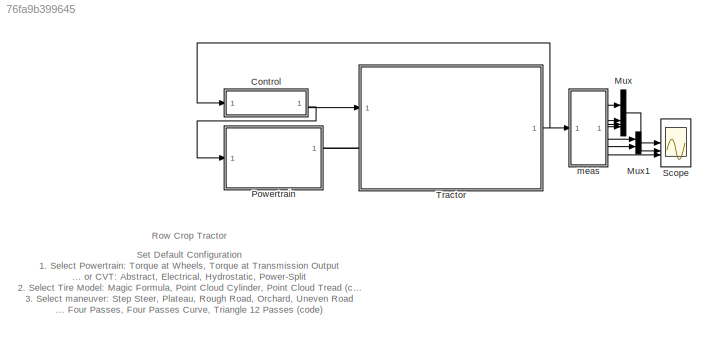
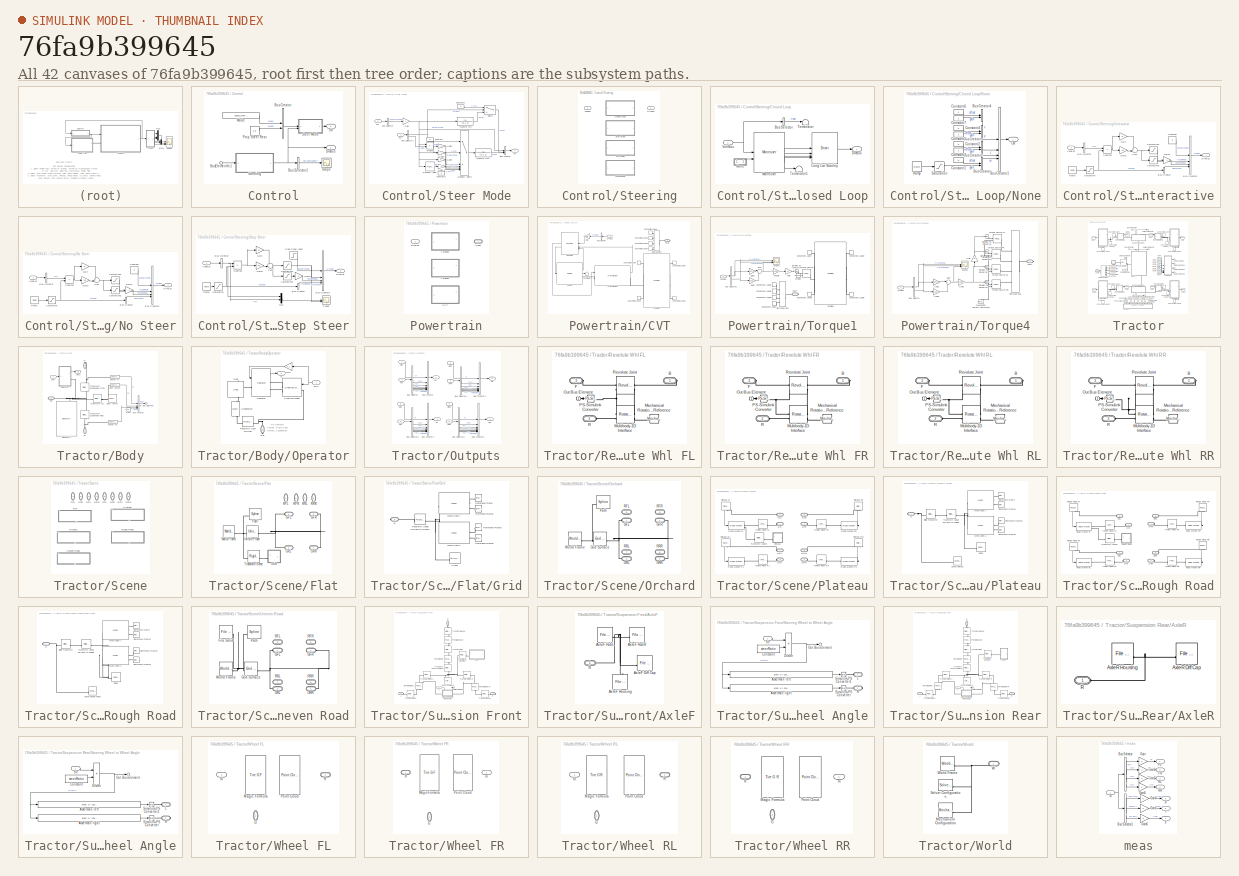
[diagram: thumbnail index - all 42 canvases of the model, root first then tree order]
MODEL slx_76fa9b399645
KIND model
CONFIG AbsTol = 1e-3
CONFIG EnableMultiTasking = on
CONFIG FixedStep = 1/1000
CONFIG MaxStep = 0.2
CONFIG PostLoadFcn = sm_tractor_row_crop_config_maneuver(bdroot,VehicleData,'stepsteer');
CONFIG SolverName = ode23t
CONFIG StartFcn = tic
CONFIG StopFcn = Elapsed_Sim_Time = toc;
CONFIG StopTime = 20
BLOCK [SubSystem] Control
  AttributesFormatString = %<popup_steer_mode>
  NameLocation = top
BLOCK [BusCreator] Control/Bus Creator
  DisplayOption = bar
  InheritFromInputs = on
  Inputs = 2
BLOCK [BusSelector] Control/Bus Selector1
  OutputSignals = aSteerWheel
BLOCK [Inport] Control/BusElementIn1
BLOCK [Outport] Control/DrvBus
  Port = 2
BLOCK [Constant] Control/Mode
  Value = popup_steer_mode
BLOCK [Constant] Control/Prop Steer Rear
  Value = 0.8
BLOCK [Scope] Control/Scope
  ActiveDisplayYMaximum = 1.47291
  ActiveDisplayYMinimum = -1.2204
  DataLoggingVariableName = ScopeData1
  Floating = off
  GraphicalSettings = {"GraphicalSettings":{"LegacySettings":true,"Style":{"Style":{"AxesColor":"[0 0 0]","ChannelNames":[""],"ColorOrder":"[1 0.909803921568627 0.392156862745098;0.149019607843137 0.549019607843137 0.866666666666667;0.96078431372549 0.466666666666667 0.16078431372549;0.286274509803922 0.858823529411765 0.250980392156863;0.752941176470588 0.36078431372549 0.984313725490196;0.423529411764706 0.9568627450...<+432ch>
  MultipleDisplayCache = [{"MaxYLimMag":1.47291,"MaxYLimReal":1.47291,"MinYLimMag":0,"MinYLimReal":-1.2204,"PlotAsMagnitudePhase":false,"ShowGrid":true,"ShowLegend":false,"Title":"%<SignalLabel>","YLabel":""}]
  NumInputPorts = 1
  WasSavedAsWebScope = on
  WindowPosition = [922 550 560 420]
BLOCK [SubSystem] Control/Steer Mode
BLOCK [BusCreator] Control/Steer Mode/Bus Creator
  DisplayOption = bar
  InheritFromInputs = on
  Inputs = 3
BLOCK [BusSelector] Control/Steer Mode/Bus Selector
  OutputSignals = aSteerWheel
BLOCK [BusSelector] Control/Steer Mode/Bus Selector1
  OutputSignals = Mode,propR
BLOCK [Constant] Control/Steer Mode/Constant
  Value = 0
BLOCK [Constant] Control/Steer Mode/Constant1
  Value = 0
BLOCK [Constant] Control/Steer Mode/Constant2
  Value = 0
BLOCK [Inport] Control/Steer Mode/Ctrl
BLOCK [Inport] Control/Steer Mode/Drv
  Port = 2
BLOCK [Gain] Control/Steer Mode/Gain
  Gain = 4
BLOCK [Gain] Control/Steer Mode/Gain1
  Gain = -1
BLOCK [Gain] Control/Steer Mode/Gain2
  Gain = -1
BLOCK [Gain] Control/Steer Mode/Gain3
  Gain = -1
BLOCK [Gain] Control/Steer Mode/Gain4
BLOCK [MultiPortSwitch] Control/Steer Mode/Multiport Switch
  InputSameDT = off
  Inputs = 6
  SaturateOnIntegerOverflow = off
BLOCK [Product] Control/Steer Mode/Product
BLOCK [Outport] Control/Steer Mode/Str
BLOCK [Switch] Control/Steer Mode/Switch
  Criteria = u2 > Threshold
  InputSameDT = off
  SaturateOnIntegerOverflow = off
  Threshold = 5
  ZeroCross = off
BLOCK [TransferFcn] Control/Steer Mode/Transfer Fcn
  Denominator = [0.1 1]
BLOCK [TransferFcn] Control/Steer Mode/Transfer Fcn1
  Denominator = [0.1 1]
BLOCK [TransportDelay] Control/Steer Mode/Transport Delay
  BufferSize = 3072
  DelayTime = 2
BLOCK [SubSystem] Control/Steering
  LabelModeActiveChoice = Step_Steer
  Variant = on
  VariantControl = Steering
  VariantControlMode = label
BLOCK [SubSystem] Control/Steering/Closed Loop
  VariantControl = Closed_Loop
BLOCK [BusSelector] Control/Steering/Closed Loop/Bus Selector
  OutputSignals = Chassis.Body.CG.vx
BLOCK [Outport] Control/Steering/Closed Loop/DrvBus
BLOCK [Reference] Control/Steering/Closed Loop/Long Lat Stanley  REF=Driver_Long_Lat_Stanley/Driver
  SourceBlock = Driver_Long_Lat_Stanley/Driver
  SourceType = Driver Behavior
BLOCK [Reference] Control/Steering/Closed Loop/Maneuver  REF=Maneuver_Get_Pose/Maneuver
  SourceBlock = Maneuver_Get_Pose/Maneuver
  SourceType = Maneuver Follow Trajectory
BLOCK [SubSystem] Control/Steering/Closed Loop/None
  VariantControl = None
BLOCK [BusCreator] Control/Steering/Closed Loop/None/Bus Creator
  DisplayOption = bar
  InheritFromInputs = on
  Inputs = 2
BLOCK [BusCreator] Control/Steering/Closed Loop/None/Bus Creator1
  DisplayOption = bar
  InheritFromInputs = on
  Inputs = 4
BLOCK [BusCreator] Control/Steering/Closed Loop/None/Bus Creator2
  DisplayOption = bar
  InheritFromInputs = on
  Inputs = 2
BLOCK [BusCreator] Control/Steering/Closed Loop/None/Bus Creator3
  DisplayOption = bar
  InheritFromInputs = on
  Inputs = 2
BLOCK [BusCreator] Control/Steering/Closed Loop/None/Bus Creator4
  DisplayOption = bar
  InheritFromInputs = on
  Inputs = 2
BLOCK [Constant] Control/Steering/Closed Loop/None/Constant1
  Value = 0
BLOCK [Constant] Control/Steering/Closed Loop/None/Constant2
  Value = 0
BLOCK [Constant] Control/Steering/Closed Loop/None/Constant3
BLOCK [Constant] Control/Steering/Closed Loop/None/Constant4
  Value = 0
BLOCK [Constant] Control/Steering/Closed Loop/None/Constant5
BLOCK [Constant] Control/Steering/Closed Loop/None/Constant6
  Value = 0
BLOCK [Constant] Control/Steering/Closed Loop/None/Constant7
BLOCK [Outport] Control/Steering/Closed Loop/None/Ovr
  VectorParamsAs1DForOutWhenUnconnected = off
BLOCK [Reference] Control/Steering/Closed Loop/None/Ramp  REF=simulink/Sources/Ramp
  SourceBlock = simulink/Sources/Ramp
  SourceType = Ramp
BLOCK [Saturate] Control/Steering/Closed Loop/None/Saturation
  LowerLimit = 0
  UpperLimit = 1
  ZeroCross = off
BLOCK [Terminator] Control/Steering/Closed Loop/Terminator
BLOCK [Terminator] Control/Steering/Closed Loop/Terminator1
BLOCK [Inport] Control/Steering/Closed Loop/VehBus
BLOCK [Outport] Control/Steering/DrvBus
BLOCK [SubSystem] Control/Steering/Interactive
  VariantControl = Interactive
BLOCK [BusCreator] Control/Steering/Interactive/Bus Creator
  DisplayOption = bar
  InheritFromInputs = on
  Inputs = 1
BLOCK [BusCreator] Control/Steering/Interactive/Bus Creator5
  DisplayOption = bar
  InheritFromInputs = on
  Inputs = 4
BLOCK [BusSelector] Control/Steering/Interactive/Bus Selector
  OutputSignals = Chassis.Body.CG.vx
BLOCK [Constant] Control/Steering/Interactive/Constant
  Value = 0
BLOCK [Outport] Control/Steering/Interactive/DrvBus
BLOCK [Gain] Control/Steering/Interactive/Gain
  Gain = Ki
BLOCK [Gain] Control/Steering/Interactive/Gain1
  Gain = Kp
BLOCK [Gain] Control/Steering/Interactive/Gain2
  Gain = -1
BLOCK [Reference] Control/Steering/Interactive/Ramp  REF=simulink/Sources/Ramp
  SourceBlock = simulink/Sources/Ramp
  SourceType = Ramp
BLOCK [Saturate] Control/Steering/Interactive/Saturation
  LowerLimit = 0
  UpperLimit = targetSpeed
  ZeroCross = off
BLOCK [Saturate] Control/Steering/Interactive/Saturation1
  LowerLimit = 0
  UpperLimit = inf
  ZeroCross = off
BLOCK [Saturate] Control/Steering/Interactive/Saturation2
  LowerLimit = -inf
  UpperLimit = 0
  ZeroCross = off
BLOCK [Sum] Control/Steering/Interactive/Subtract
  IconShape = rectangular
  Inputs = -+
BLOCK [Sum] Control/Steering/Interactive/Sum
  Inputs = ++|
BLOCK [Inport] Control/Steering/Interactive/VehBus
BLOCK [SubSystem] Control/Steering/No Steer
  VariantControl = No_Steer
BLOCK [BusCreator] Control/Steering/No Steer/Bus Creator
  DisplayOption = bar
  InheritFromInputs = on
  Inputs = 1
BLOCK [BusCreator] Control/Steering/No Steer/Bus Creator5
  DisplayOption = bar
  InheritFromInputs = on
  Inputs = 4
BLOCK [BusSelector] Control/Steering/No Steer/Bus Selector
  OutputSignals = Chassis.Body.CG.vx
BLOCK [Constant] Control/Steering/No Steer/Constant
  Value = 0
BLOCK [Outport] Control/Steering/No Steer/DrvBus
BLOCK [Gain] Control/Steering/No Steer/Gain
  Gain = Ki
BLOCK [Gain] Control/Steering/No Steer/Gain1
  Gain = Kp
BLOCK [Gain] Control/Steering/No Steer/Gain2
  Gain = -1
BLOCK [Reference] Control/Steering/No Steer/Ramp  REF=simulink/Sources/Ramp
  SourceBlock = simulink/Sources/Ramp
  SourceType = Ramp
BLOCK [Saturate] Control/Steering/No Steer/Saturation
  LowerLimit = 0
  UpperLimit = targetSpeed
  ZeroCross = off
BLOCK [Saturate] Control/Steering/No Steer/Saturation1
  LowerLimit = 0
  UpperLimit = inf
  ZeroCross = off
BLOCK [Saturate] Control/Steering/No Steer/Saturation2
  LowerLimit = -inf
  UpperLimit = 0
  ZeroCross = off
BLOCK [Sum] Control/Steering/No Steer/Subtract
  IconShape = rectangular
  Inputs = -+
BLOCK [Sum] Control/Steering/No Steer/Sum
  Inputs = ++|
BLOCK [Inport] Control/Steering/No Steer/VehBus
BLOCK [SubSystem] Control/Steering/Step Steer
  VariantControl = Step_Steer
BLOCK [BusCreator] Control/Steering/Step Steer/Bus Creator
  DisplayOption = bar
  InheritFromInputs = on
  Inputs = 1
BLOCK [BusCreator] Control/Steering/Step Steer/Bus Creator5
  DisplayOption = bar
  InheritFromInputs = on
  Inputs = 4
BLOCK [BusSelector] Control/Steering/Step Steer/Bus Selector
  OutputSignals = Chassis.Body.CG.vx
BLOCK [Outport] Control/Steering/Step Steer/DrvBus
BLOCK [Gain] Control/Steering/Step Steer/Gain
  Gain = Ki
BLOCK [Gain] Control/Steering/Step Steer/Gain1
  Gain = Kp
BLOCK [Gain] Control/Steering/Step Steer/Gain2
  Gain = -1
BLOCK [Mux] Control/Steering/Step Steer/Mux
  DisplayOption = bar
  Inputs = 2
BLOCK [Reference] Control/Steering/Step Steer/Ramp  REF=simulink/Sources/Ramp
  SourceBlock = simulink/Sources/Ramp
  SourceType = Ramp
BLOCK [Saturate] Control/Steering/Step Steer/Saturation
  LowerLimit = 0
  UpperLimit = targetSpeed
  ZeroCross = off
BLOCK [Saturate] Control/Steering/Step Steer/Saturation1
  LowerLimit = 0
  UpperLimit = inf
  ZeroCross = off
BLOCK [Saturate] Control/Steering/Step Steer/Saturation2
  LowerLimit = -inf
  UpperLimit = 0
  ZeroCross = off
BLOCK [Scope] Control/Steering/Step Steer/Scope
  ActiveDisplayYMaximum = 5.625
  ActiveDisplayYMinimum = -0.625
  DataLoggingVariableName = ScopeData1
  Floating = off
  GraphicalSettings = {"GraphicalSettings":{"LegacySettings":true,"Style":{"Style":{"AxesColor":"[0 0 0]","ChannelNames":["",""],"ColorOrder":"[1 0.909803921568627 0.392156862745098;0.149019607843137 0.549019607843137 0.866666666666667;0.96078431372549 0.466666666666667 0.16078431372549;0.286274509803922 0.858823529411765 0.250980392156863;0.752941176470588 0.36078431372549 0.984313725490196;0.423529411764706 0.9568627...<+466ch>
  LayoutDimensionsString = [2 1]
  MultipleDisplayCache = [{"MaxYLimMag":5.625,"MaxYLimReal":5.625,"MinYLimMag":0,"MinYLimReal":-0.625,"PlotAsMagnitudePhase":false,"ShowGrid":true,"ShowLegend":false,"Title":"%<SignalLabel>","YLabel":""},{"MaxYLimMag":10,"MaxYLimReal":1.76864,"MinYLimMag":0,"MinYLimReal":-0.19652,"PlotAsMagnitudePhase":false,"ShowGrid":true,"ShowLegend":false,"Title":"%<SignalLabel>","YLabel":""}]
  NumInputPorts = 2
  WasSavedAsWebScope = on
  WindowPosition = [1128 377 560 420]
BLOCK [Step] Control/Steering/Step Steer/Step Steer input
  FinalValue = 50*pi/180
  NameLocation = top
  SampleTime = 0
  Time = 5
BLOCK [Sum] Control/Steering/Step Steer/Subtract
  IconShape = rectangular
  Inputs = -+
BLOCK [Sum] Control/Steering/Step Steer/Sum
  Inputs = ++|
BLOCK [Inport] Control/Steering/Step Steer/VehBus
BLOCK [Inport] Control/Steering/VehBus
BLOCK [Outport] Control/Str
BLOCK [Mux] Mux
  DisplayOption = bar
BLOCK [Mux] Mux1
  DisplayOption = bar
  Inputs = 2
BLOCK [SubSystem] Powertrain
  AttributesFormatString = %<popup_powertrain_config>
  LabelModeActiveChoice = Torque4
  Variant = on
  VariantControl = Powertrain
  VariantControlMode = label
BLOCK [SubSystem] Powertrain/CVT
  VariantControl = CVT
BLOCK [BusSelector] Powertrain/CVT/Bus Selector
  OutputSignals = Reference.vTarget
BLOCK [ConnectionLabel] Powertrain/CVT/Connection Label
  Label = FL
  NameLocation = top
BLOCK [ConnectionLabel] Powertrain/CVT/Connection Label1
  Label = FL
  NameLocation = top
BLOCK [ConnectionLabel] Powertrain/CVT/Connection Label2
  Label = FR
BLOCK [ConnectionLabel] Powertrain/CVT/Connection Label3
  Label = FR
  NameLocation = top
BLOCK [ConnectionLabel] Powertrain/CVT/Connection Label4
  Label = RL
  NameLocation = top
BLOCK [ConnectionLabel] Powertrain/CVT/Connection Label5
  Label = RL
  NameLocation = top
BLOCK [ConnectionLabel] Powertrain/CVT/Connection Label6
  Label = RR
BLOCK [ConnectionLabel] Powertrain/CVT/Connection Label7
  Label = RR
  NameLocation = right
BLOCK [Reference] Powertrain/CVT/Controller  REF=sm_tractor_row_crop_lib/Controller  (lib defined in slx_1aafa4fbb624)
  SourceBlock = sm_tractor_row_crop_lib/Controller
  SourceType = SubSystem
BLOCK [Reference] Powertrain/CVT/Driveline  REF=sm_tractor_row_crop_lib/Driveline  (lib defined in slx_1aafa4fbb624)
  SourceBlock = sm_tractor_row_crop_lib/Driveline
BLOCK [Inport] Powertrain/CVT/DrvBus
BLOCK [Reference] Powertrain/CVT/Engine  REF=sm_tractor_row_crop_lib_vnts/Engine
  AttributesFormatString = %<LabelModeActiveChoice>
  SourceBlock = sm_tractor_row_crop_lib_vnts/Engine
  SourceType = SubSystem
BLOCK [Gain] Powertrain/CVT/Gain
  Gain = 3.6/HMPST.Veh.TopSpeed*100
BLOCK [PMIOPort] Powertrain/CVT/Shaft
  Side = Right
BLOCK [SimscapeBus] Powertrain/CVT/Simscape Bus
  HierarchyStrings = FL;FR;RL;RR
BLOCK [Terminator] Powertrain/CVT/Terminator
BLOCK [Reference] Powertrain/CVT/Transmission  REF=sm_tractor_row_crop_lib_vnts/Transmission
  AttributesFormatString = %<LabelModeActiveChoice>
  SourceBlock = sm_tractor_row_crop_lib_vnts/Transmission
  SourceType = SubSystem
BLOCK [Inport] Powertrain/DrvBus
BLOCK [PMIOPort] Powertrain/Shaft
  Side = Right
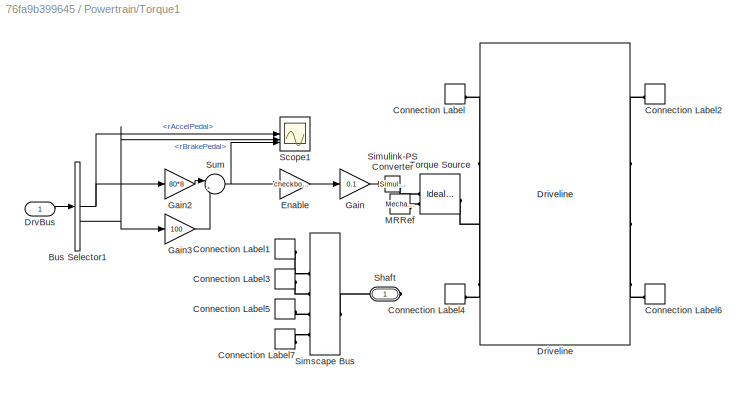
BLOCK [SubSystem] Powertrain/Torque1
  VariantControl = Torque1
BLOCK [BusSelector] Powertrain/Torque1/Bus Selector1
  OutputSignals = rAccelPedal,rBrakePedal
BLOCK [ConnectionLabel] Powertrain/Torque1/Connection Label
  Label = FL
  NameLocation = top
BLOCK [ConnectionLabel] Powertrain/Torque1/Connection Label1
  Label = FL
  NameLocation = top
BLOCK [ConnectionLabel] Powertrain/Torque1/Connection Label2
  Label = FR
BLOCK [ConnectionLabel] Powertrain/Torque1/Connection Label3
  Label = FR
  NameLocation = top
BLOCK [ConnectionLabel] Powertrain/Torque1/Connection Label4
  Label = RL
  NameLocation = top
BLOCK [ConnectionLabel] Powertrain/Torque1/Connection Label5
  Label = RL
  NameLocation = top
BLOCK [ConnectionLabel] Powertrain/Torque1/Connection Label6
  Label = RR
BLOCK [ConnectionLabel] Powertrain/Torque1/Connection Label7
  Label = RR
  NameLocation = right
BLOCK [Reference] Powertrain/Torque1/Driveline  REF=sm_tractor_row_crop_lib/Driveline  (lib defined in slx_1aafa4fbb624)
  SourceBlock = sm_tractor_row_crop_lib/Driveline
BLOCK [Inport] Powertrain/Torque1/DrvBus
BLOCK [Gain] Powertrain/Torque1/Enable
  Gain = checkbox_torque_source
BLOCK [Gain] Powertrain/Torque1/Gain
  Gain = 0.1
BLOCK [Gain] Powertrain/Torque1/Gain2
  Gain = 80*8
BLOCK [Gain] Powertrain/Torque1/Gain3
  Gain = 100
BLOCK [Reference] Powertrain/Torque1/MRRef  REF=fl_lib/Mechanical/Rotational Elements/Mechanical
Rotational Reference
  SourceBlock = fl_lib/Mechanical/Rotational Elements/Mechanical\nRotational Reference
  SourceType = Mechanical\nRotational Reference
BLOCK [Scope] Powertrain/Torque1/Scope1
  ActiveDisplayYMaximum = 139.17503
  ActiveDisplayYMinimum = -15.46389
  DataLoggingVariableName = ScopeData1
  Floating = off
  GraphicalSettings = {"GraphicalSettings":{"LegacySettings":true,"Style":{"AxesScalingProperties":{"ScaleAxesLimitsAtStop":false},"Style":{"AxesColor":"[0 0 0]","ChannelNames":["","",""],"ColorOrder":"[1 0.909803921568627 0.392156862745098;0.149019607843137 0.549019607843137 0.866666666666667;0.96078431372549 0.466666666666667 0.16078431372549;0.286274509803922 0.858823529411765 0.250980392156863;0.752941176470588 0.3...<+583ch>
  LayoutDimensionsString = [3 1]
  MultipleDisplayCache = [{"MaxYLimMag":139.17503,"MaxYLimReal":139.17503,"MinYLimMag":0,"MinYLimReal":-15.46389,"PlotAsMagnitudePhase":false,"ShowGrid":true,"ShowLegend":false,"Title":"%<SignalLabel>","YLabel":""},{"MaxYLimMag":10,"MaxYLimReal":28.78534,"MinYLimMag":0,"MinYLimReal":-259.06806,"PlotAsMagnitudePhase":false,"ShowGrid":true,"ShowLegend":false,"Title":"%<SignalLabel>","YLabel":""},{"MaxYLimMag":10,"MaxYLimRea...<+158ch>
  NumInputPorts = 3
  WasSavedAsWebScope = on
BLOCK [PMIOPort] Powertrain/Torque1/Shaft
  Side = Right
BLOCK [SimscapeBus] Powertrain/Torque1/Simscape Bus
  HierarchyStrings = FL;FR;RL;RR
BLOCK [Reference] Powertrain/Torque1/Simulink-PS Converter  REF=nesl_utility/Simulink-PS
Converter
  SourceBlock = nesl_utility/Simulink-PS\nConverter
  SourceType = Simulink-PS\nConverter
BLOCK [Sum] Powertrain/Torque1/Sum
  Inputs = |+-
BLOCK [Reference] Powertrain/Torque1/Torque Source  REF=fl_lib/Mechanical/Mechanical Sources/Ideal Torque Source
  SourceBlock = fl_lib/Mechanical/Mechanical Sources/Ideal Torque Source
  SourceType = Ideal Torque Source
BLOCK [SubSystem] Powertrain/Torque4
  VariantControl = Torque4
BLOCK [BusSelector] Powertrain/Torque4/Bus Selector
  OutputSignals = rAccelPedal,rBrakePedal
BLOCK [Inport] Powertrain/Torque4/DrvBus
BLOCK [Gain] Powertrain/Torque4/Gain
  Gain = 0.5
  NameLocation = right
BLOCK [Gain] Powertrain/Torque4/Gain1
  Gain = checkbox_torque_source
BLOCK [Gain] Powertrain/Torque4/Gain2
  Gain = 80*8
BLOCK [Gain] Powertrain/Torque4/Gain3
  Gain = 100
BLOCK [Reference] Powertrain/Torque4/Mechanical Rotational Reference  REF=fl_lib/Mechanical/Rotational Elements/Mechanical
Rotational Reference
  NameLocation = right
  SourceBlock = fl_lib/Mechanical/Rotational Elements/Mechanical\nRotational Reference
  SourceType = Mechanical\nRotational Reference
BLOCK [Scope] Powertrain/Torque4/Scope1
  ActiveDisplayYMaximum = 1
  ActiveDisplayYMinimum = -1
  DataLoggingVariableName = ScopeData2
  Floating = off
  GraphicalSettings = {"GraphicalSettings":{"LegacySettings":true,"Style":{"AxesScalingProperties":{"ScaleAxesLimitsAtStop":false},"Style":{"AxesColor":"[0 0 0]","ChannelNames":["","",""],"ColorOrder":"[1 0.909803921568627 0.392156862745098;0.149019607843137 0.549019607843137 0.866666666666667;0.96078431372549 0.466666666666667 0.16078431372549;0.286274509803922 0.858823529411765 0.250980392156863;0.752941176470588 0.3...<+583ch>
  LayoutDimensionsString = [3 1]
  MultipleDisplayCache = [{"MaxYLimMag":1,"MaxYLimReal":1,"MinYLimMag":0,"MinYLimReal":-1,"PlotAsMagnitudePhase":false,"ShowGrid":true,"ShowLegend":false,"Title":"%<SignalLabel>","YLabel":""},{"MaxYLimMag":10,"MaxYLimReal":1,"MinYLimMag":0,"MinYLimReal":-1,"PlotAsMagnitudePhase":false,"ShowGrid":true,"ShowLegend":false,"Title":"%<SignalLabel>","YLabel":""},{"MaxYLimMag":10,"MaxYLimReal":1,"MinYLimMag":0,"MinYLimReal":-1,"...<+101ch>
  NumInputPorts = 3
  WasSavedAsWebScope = on
BLOCK [PMIOPort] Powertrain/Torque4/Shaft
  Side = Right
BLOCK [SimscapeBus] Powertrain/Torque4/Simscape Bus
  HierarchyStrings = FL;FR;RL;RR
BLOCK [Reference] Powertrain/Torque4/Simulink-PS Converter  REF=nesl_utility/Simulink-PS
Converter
  SourceBlock = nesl_utility/Simulink-PS\nConverter
  SourceType = Simulink-PS\nConverter
BLOCK [Reference] Powertrain/Torque4/Simulink-PS Converter1  REF=nesl_utility/Simulink-PS
Converter
  SourceBlock = nesl_utility/Simulink-PS\nConverter
  SourceType = Simulink-PS\nConverter
BLOCK [Reference] Powertrain/Torque4/Simulink-PS Converter2  REF=nesl_utility/Simulink-PS
Converter
  SourceBlock = nesl_utility/Simulink-PS\nConverter
  SourceType = Simulink-PS\nConverter
BLOCK [Reference] Powertrain/Torque4/Simulink-PS Converter3  REF=nesl_utility/Simulink-PS
Converter
  SourceBlock = nesl_utility/Simulink-PS\nConverter
  SourceType = Simulink-PS\nConverter
BLOCK [Sum] Powertrain/Torque4/Sum
  Inputs = |+-
BLOCK [Reference] Powertrain/Torque4/Torque Source FL  REF=fl_lib/Mechanical/Mechanical Sources/Ideal Torque Source
  SourceBlock = fl_lib/Mechanical/Mechanical Sources/Ideal Torque Source
  SourceType = Ideal Torque Source
BLOCK [Reference] Powertrain/Torque4/Torque Source FR  REF=fl_lib/Mechanical/Mechanical Sources/Ideal Torque Source
  SourceBlock = fl_lib/Mechanical/Mechanical Sources/Ideal Torque Source
  SourceType = Ideal Torque Source
BLOCK [Reference] Powertrain/Torque4/Torque Source RL  REF=fl_lib/Mechanical/Mechanical Sources/Ideal Torque Source
  SourceBlock = fl_lib/Mechanical/Mechanical Sources/Ideal Torque Source
  SourceType = Ideal Torque Source
BLOCK [Reference] Powertrain/Torque4/Torque Source RR  REF=fl_lib/Mechanical/Mechanical Sources/Ideal Torque Source
  SourceBlock = fl_lib/Mechanical/Mechanical Sources/Ideal Torque Source
  SourceType = Ideal Torque Source
BLOCK [Scope] Scope
  ActiveDisplayYMaximum = 60.82409
  ActiveDisplayYMinimum = 30.90108
  DataLoggingVariableName = ScopeData1
  Floating = off
  GraphicalSettings = {"GraphicalSettings":{"LegacySettings":true,"Style":{"AxesScalingProperties":{"AxesScaling":"Auto"},"Style":{"AxesColor":"[0 0 0]","ChannelNames":["","",""],"ColorOrder":"[1 1 0.0666666666666667;0.0745098039215686 0.623529411764706 1;1 0.411764705882353 0.16078431372549;0.392156862745098 0.831372549019608 0.0745098039215686;0.717647058823529 0.274509803921569 1;0.0588235294117647 1 1;1 0.074509803...<+735ch>
  LayoutDimensionsString = [3 1]
  MultipleDisplayCache = [{"MaxYLimMag":60.82409,"MaxYLimReal":60.82409,"MinYLimMag":30.90108,"MinYLimReal":30.90108,"PlotAsMagnitudePhase":false,"ShowGrid":true,"ShowLegend":true,"Title":"%<SignalLabel>","YLabel":""},{"MaxYLimMag":22.36037,"MaxYLimReal":0.11635,"MinYLimMag":0,"MinYLimReal":-0.01355,"PlotAsMagnitudePhase":false,"ShowGrid":true,"ShowLegend":true,"Title":"%<SignalLabel>","YLabel":""},{"MaxYLimMag":22.36037,...<+161ch>
  NumInputPorts = 3
  ShowLegend = on
  WasSavedAsWebScope = on
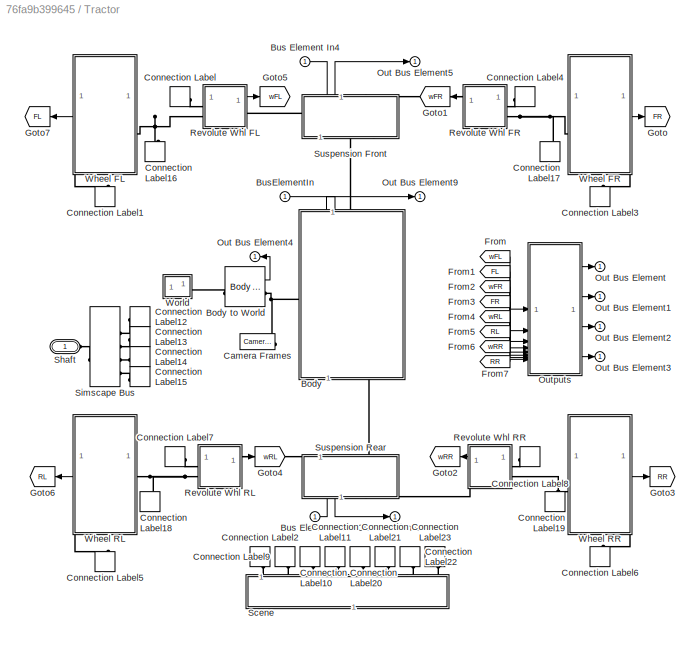
BLOCK [SubSystem] Tractor
  AttributesFormatString = %<popup_road_surface>, %<popup_tire_type>\nFixed-Step: %<popup_local_solver>\nOperator: %<popup_operator>
BLOCK [SubSystem] Tractor/Body
  NameLocation = right
  PortSchema = {"entries":[{"content":{"sides":[{"content":{"connectorIds":["LConn1"]},"type":"ConnectorPlacement.EquallySpacedRectSide","uuid":"96da581a-446c-43fa-8064-b9be639c090a"},{"content":{"connectorIds":["Out1","RConn1","In1"],"side":"RIGHT"},"type":"ConnectorPlacement.EquallySpacedRectSide","uuid":"2c5988da-ae00-48b3-be94-fd9e5696b9c8"},{"content":{"side":"TOP"},"type":"ConnectorPlacement.EquallySpacedR...<+392ch>
BLOCK [Reference] Tractor/Body to World  REF=sm_vehicle_utilities_lib/Body to World  (lib defined in slx_7901a99a1966, slx_bde73e06ff5b)
  SourceBlock = sm_vehicle_utilities_lib/Body to World
  SourceType = Body to World
BLOCK [Reference] Tractor/Body/Body Inertia  REF=sm_lib/Body Elements/Brick Solid
  SourceBlock = sm_lib/Body Elements/Brick Solid
  SourceType = Brick Solid
BLOCK [Reference] Tractor/Body/Body Sensor  REF=sm_vehicle_utilities_lib/Body Sensor  (lib defined in slx_7901a99a1966, slx_bde73e06ff5b)
  SourceBlock = sm_vehicle_utilities_lib/Body Sensor
  SourceType = Measurements in Body Frame
BLOCK [BusCreator] Tractor/Body/Bus Creator
  DisplayOption = bar
  InheritFromInputs = on
  Inputs = 4
BLOCK [PMIOPort] Tractor/Body/FA
  NameLocation = right
  Port = 2
  Side = Right
BLOCK [From] Tractor/Body/From
  GotoTag = Dr
BLOCK [Reference] Tractor/Body/Geometry  REF=Tractor_Geometry/Geometry
  SourceBlock = Tractor_Geometry/Geometry
BLOCK [Goto] Tractor/Body/Goto
  GotoTag = Dr
BLOCK [SubSystem] Tractor/Body/Operator
  AttributesFormatString = %<popup_operator>
BLOCK [Gain] Tractor/Body/Operator/Gain
  Gain = 0.1
  NameLocation = top
BLOCK [Reference] Tractor/Body/Operator/Operator  REF=sm_vehicle_utilities_lib/Operator  (lib defined in slx_7901a99a1966, slx_bde73e06ff5b)
  AttributesFormatString = %<popup_operator>
  SourceBlock = sm_vehicle_utilities_lib/Operator
BLOCK [PMIOPort] Tractor/Body/Operator/Ref
  NameLocation = right
  Side = Right
BLOCK [Reference] Tractor/Body/Operator/Seat  REF=Tractor_Geometry/Seat
  NameLocation = left
  SourceBlock = Tractor_Geometry/Seat
BLOCK [Reference] Tractor/Body/Operator/Steering Wheel  REF=sm_vehicle_utilities_lib/Steering  (lib defined in slx_7901a99a1966, slx_bde73e06ff5b)
Wheel
  SourceBlock = sm_vehicle_utilities_lib/Steering\nWheel
BLOCK [Reference] Tractor/Body/Operator/Suspension  REF=sm_vehicle_utilities_lib/Suspension  (lib defined in slx_7901a99a1966, slx_bde73e06ff5b)
  AttributesFormatString = %<popup_suspension>
  NameLocation = left
  SourceBlock = sm_vehicle_utilities_lib/Suspension
BLOCK [Reference] Tractor/Body/Operator/Transform Seat xOffset  REF=sm_lib/Frames and
Transforms/Rigid
Transform
  SourceBlock = sm_lib/Frames and\nTransforms/Rigid\nTransform
  SourceType = Rigid\nTransform
BLOCK [Outport] Tractor/Body/Operator/m
  NameLocation = right
BLOCK [Inport] Tractor/Body/Operator/qStr
BLOCK [Outport] Tractor/Body/Out Bus Element
BLOCK [PMIOPort] Tractor/Body/RA
  NameLocation = right
  Side = Left
BLOCK [PMIOPort] Tractor/Body/Ref
  Port = 3
  Side = Right
BLOCK [Reference] Tractor/Body/Sensor FA  REF=sm_vehicle_utilities_lib/Body Sensor  (lib defined in slx_7901a99a1966, slx_bde73e06ff5b)
  SourceBlock = sm_vehicle_utilities_lib/Body Sensor
  SourceType = Measurements in Body Frame
BLOCK [Reference] Tractor/Body/Sensor RA  REF=sm_vehicle_utilities_lib/Body Sensor  (lib defined in slx_7901a99a1966, slx_bde73e06ff5b)
  SourceBlock = sm_vehicle_utilities_lib/Body Sensor
  SourceType = Measurements in Body Frame
BLOCK [Reference] Tractor/Body/Transform CG  REF=sm_lib/Frames and
Transforms/Rigid
Transform
  SourceBlock = sm_lib/Frames and\nTransforms/Rigid\nTransform
  SourceType = Rigid\nTransform
BLOCK [Reference] Tractor/Body/Transform Suspension Front  REF=sm_lib/Frames and
Transforms/Rigid
Transform
  NameLocation = right
  SourceBlock = sm_lib/Frames and\nTransforms/Rigid\nTransform
  SourceType = Rigid\nTransform
BLOCK [Reference] Tractor/Body/Transform Suspension Rear  REF=sm_lib/Frames and
Transforms/Rigid
Transform
  NameLocation = right
  SourceBlock = sm_lib/Frames and\nTransforms/Rigid\nTransform
  SourceType = Rigid\nTransform
BLOCK [Inport] Tractor/Body/qStr
BLOCK [Inport] Tractor/Bus Element In4
  NameLocation = top
BLOCK [Inport] Tractor/Bus Element In5
  NameLocation = top
BLOCK [Inport] Tractor/BusElementIn
BLOCK [Reference] Tractor/Camera Frames  REF=sm_vehicle_utilities_lib/Camera Frames  (lib defined in slx_7901a99a1966, slx_bde73e06ff5b)
  SourceBlock = sm_vehicle_utilities_lib/Camera Frames
  SourceType = Camera Frame Definitions
BLOCK [ConnectionLabel] Tractor/Connection Label
  Label = FL
BLOCK [ConnectionLabel] Tractor/Connection Label1
  Label = GFL
  NameLocation = right
BLOCK [ConnectionLabel] Tractor/Connection Label10
  Label = GRL
  NameLocation = left
BLOCK [ConnectionLabel] Tractor/Connection Label11
  Label = GRR
  NameLocation = left
BLOCK [ConnectionLabel] Tractor/Connection Label12
  Label = FL
  NameLocation = top
BLOCK [ConnectionLabel] Tractor/Connection Label13
  Label = FR
BLOCK [ConnectionLabel] Tractor/Connection Label14
  Label = RL
  NameLocation = top
BLOCK [ConnectionLabel] Tractor/Connection Label15
  Label = RR
BLOCK [ConnectionLabel] Tractor/Connection Label16
  Label = RFL
  NameLocation = right
BLOCK [ConnectionLabel] Tractor/Connection Label17
  Label = RFR
  NameLocation = right
BLOCK [ConnectionLabel] Tractor/Connection Label18
  Label = RRL
  NameLocation = right
BLOCK [ConnectionLabel] Tractor/Connection Label19
  Label = RRR
  NameLocation = right
BLOCK [ConnectionLabel] Tractor/Connection Label2
  Label = GFL
  NameLocation = left
BLOCK [ConnectionLabel] Tractor/Connection Label20
  Label = RFL
  NameLocation = left
BLOCK [ConnectionLabel] Tractor/Connection Label21
  Label = RFR
  NameLocation = left
BLOCK [ConnectionLabel] Tractor/Connection Label22
  Label = RRL
  NameLocation = left
BLOCK [ConnectionLabel] Tractor/Connection Label23
  Label = RRR
  NameLocation = left
BLOCK [ConnectionLabel] Tractor/Connection Label3
  Label = GFR
  NameLocation = right
BLOCK [ConnectionLabel] Tractor/Connection Label4
  Label = FR
BLOCK [ConnectionLabel] Tractor/Connection Label5
  Label = GRL
  NameLocation = right
BLOCK [ConnectionLabel] Tractor/Connection Label6
  Label = GRR
  NameLocation = right
BLOCK [ConnectionLabel] Tractor/Connection Label7
  Label = RL
BLOCK [ConnectionLabel] Tractor/Connection Label8
  Label = RR
BLOCK [ConnectionLabel] Tractor/Connection Label9
  Label = GFR
  NameLocation = left
BLOCK [From] Tractor/From
  GotoTag = wFL
BLOCK [From] Tractor/From1
  GotoTag = FL
BLOCK [From] Tractor/From2
  GotoTag = wFR
BLOCK [From] Tractor/From3
  GotoTag = FR
BLOCK [From] Tractor/From4
  GotoTag = wRL
BLOCK [From] Tractor/From5
  GotoTag = RL
BLOCK [From] Tractor/From6
  GotoTag = wRR
BLOCK [From] Tractor/From7
  GotoTag = RR
BLOCK [Goto] Tractor/Goto
  GotoTag = FR
BLOCK [Goto] Tractor/Goto1
  GotoTag = wFR
  NameLocation = top
BLOCK [Goto] Tractor/Goto2
  GotoTag = wRR
  NameLocation = top
BLOCK [Goto] Tractor/Goto3
  GotoTag = RR
BLOCK [Goto] Tractor/Goto4
  GotoTag = wRL
BLOCK [Goto] Tractor/Goto5
  GotoTag = wFL
BLOCK [Goto] Tractor/Goto6
  GotoTag = RL
BLOCK [Goto] Tractor/Goto7
  GotoTag = FL
BLOCK [Outport] Tractor/Out Bus Element
BLOCK [Outport] Tractor/Out Bus Element1
BLOCK [Outport] Tractor/Out Bus Element2
BLOCK [Outport] Tractor/Out Bus Element3
BLOCK [Outport] Tractor/Out Bus Element4
  NameLocation = top
BLOCK [Outport] Tractor/Out Bus Element5
  NameLocation = top
BLOCK [Outport] Tractor/Out Bus Element6
  NameLocation = top
BLOCK [Outport] Tractor/Out Bus Element9
BLOCK [SubSystem] Tractor/Outputs
BLOCK [BusCreator] Tractor/Outputs/Bus Creator
  DisplayOption = bar
  InheritFromInputs = on
  Inputs = 8
BLOCK [BusCreator] Tractor/Outputs/Bus Creator1
  DisplayOption = bar
  InheritFromInputs = on
  Inputs = 8
BLOCK [BusCreator] Tractor/Outputs/Bus Creator2
  DisplayOption = bar
  InheritFromInputs = on
  Inputs = 8
BLOCK [BusCreator] Tractor/Outputs/Bus Creator3
  DisplayOption = bar
  InheritFromInputs = on
  Inputs = 8
BLOCK [BusSelector] Tractor/Outputs/Bus Selector
  OutputSignals = Fx,Fy,Fz,Tx,Ty,Tz,vtanMax
BLOCK [BusSelector] Tractor/Outputs/Bus Selector1
  OutputSignals = Fx,Fy,Fz,Tx,Ty,Tz,vtanMax
BLOCK [BusSelector] Tractor/Outputs/Bus Selector2
  OutputSignals = Fx,Fy,Fz,Tx,Ty,Tz,vtanMax
BLOCK [BusSelector] Tractor/Outputs/Bus Selector3
  OutputSignals = Fx,Fy,Fz,Tx,Ty,Tz,vtanMax
BLOCK [Outport] Tractor/Outputs/FL
BLOCK [Outport] Tractor/Outputs/FR
  Port = 2
BLOCK [Outport] Tractor/Outputs/RL
  Port = 3
BLOCK [Outport] Tractor/Outputs/RR
  Port = 4
BLOCK [Inport] Tractor/Outputs/TFL
  Port = 2
BLOCK [Inport] Tractor/Outputs/TFR
  Port = 4
BLOCK [Inport] Tractor/Outputs/TRL
  Port = 6
BLOCK [Inport] Tractor/Outputs/TRR
  Port = 8
BLOCK [Inport] Tractor/Outputs/wFL
BLOCK [Inport] Tractor/Outputs/wFR
  Port = 3
BLOCK [Inport] Tractor/Outputs/wRL
  Port = 5
BLOCK [Inport] Tractor/Outputs/wRR
  Port = 7
BLOCK [SubSystem] Tractor/Revolute Whl FL
BLOCK [PMIOPort] Tractor/Revolute Whl FL/B
  Side = Right
BLOCK [PMIOPort] Tractor/Revolute Whl FL/F
  Port = 3
  Side = Left
BLOCK [Reference] Tractor/Revolute Whl FL/Mechanical Rotational Reference  REF=fl_lib/Mechanical/Rotational Elements/Mechanical
Rotational Reference
  NameLocation = top
  SourceBlock = fl_lib/Mechanical/Rotational Elements/Mechanical\nRotational Reference
  SourceType = Mechanical\nRotational Reference
BLOCK [Reference] Tractor/Revolute Whl FL/Multibody-1D Interface  REF=fl_lib/Mechanical/Multibody Interfaces/Rotational Multibody
Interface
  SourceBlock = fl_lib/Mechanical/Multibody Interfaces/Rotational Multibody\nInterface
  SourceType = Rotational Multibody\nInterface
BLOCK [Outport] Tractor/Revolute Whl FL/Out Bus Element
BLOCK [Reference] Tractor/Revolute Whl FL/PS-Simulink Converter  REF=nesl_utility/PS-Simulink
Converter
  SourceBlock = nesl_utility/PS-Simulink\nConverter
  SourceType = PS-Simulink\nConverter
BLOCK [PMIOPort] Tractor/Revolute Whl FL/R
  Port = 2
  Side = Left
BLOCK [Reference] Tractor/Revolute Whl FL/Revolute Joint  REF=sm_lib/Joints/Revolute Joint
  NameLocation = top
  SourceBlock = sm_lib/Joints/Revolute Joint
  SourceType = Revolute Joint
BLOCK [SubSystem] Tractor/Revolute Whl FR
BLOCK [PMIOPort] Tractor/Revolute Whl FR/B
  Side = Right
BLOCK [PMIOPort] Tractor/Revolute Whl FR/F
  Port = 3
  Side = Left
BLOCK [Reference] Tractor/Revolute Whl FR/Mechanical Rotational Reference  REF=fl_lib/Mechanical/Rotational Elements/Mechanical
Rotational Reference
  NameLocation = top
  SourceBlock = fl_lib/Mechanical/Rotational Elements/Mechanical\nRotational Reference
  SourceType = Mechanical\nRotational Reference
BLOCK [Reference] Tractor/Revolute Whl FR/Multibody-1D Interface  REF=fl_lib/Mechanical/Multibody Interfaces/Rotational Multibody
Interface
  SourceBlock = fl_lib/Mechanical/Multibody Interfaces/Rotational Multibody\nInterface
  SourceType = Rotational Multibody\nInterface
BLOCK [Outport] Tractor/Revolute Whl FR/Out Bus Element
BLOCK [Reference] Tractor/Revolute Whl FR/PS-Simulink Converter  REF=nesl_utility/PS-Simulink
Converter
  SourceBlock = nesl_utility/PS-Simulink\nConverter
  SourceType = PS-Simulink\nConverter
BLOCK [PMIOPort] Tractor/Revolute Whl FR/R
  Port = 2
  Side = Left
BLOCK [Reference] Tractor/Revolute Whl FR/Revolute Joint  REF=sm_lib/Joints/Revolute Joint
  NameLocation = top
  SourceBlock = sm_lib/Joints/Revolute Joint
  SourceType = Revolute Joint
BLOCK [SubSystem] Tractor/Revolute Whl RL
BLOCK [PMIOPort] Tractor/Revolute Whl RL/B
  Side = Right
BLOCK [PMIOPort] Tractor/Revolute Whl RL/F
  Port = 3
  Side = Left
BLOCK [Reference] Tractor/Revolute Whl RL/Mechanical Rotational Reference  REF=fl_lib/Mechanical/Rotational Elements/Mechanical
Rotational Reference
  NameLocation = top
  SourceBlock = fl_lib/Mechanical/Rotational Elements/Mechanical\nRotational Reference
  SourceType = Mechanical\nRotational Reference
BLOCK [Reference] Tractor/Revolute Whl RL/Multibody-1D Interface  REF=fl_lib/Mechanical/Multibody Interfaces/Rotational Multibody
Interface
  SourceBlock = fl_lib/Mechanical/Multibody Interfaces/Rotational Multibody\nInterface
  SourceType = Rotational Multibody\nInterface
BLOCK [Outport] Tractor/Revolute Whl RL/Out Bus Element
BLOCK [Reference] Tractor/Revolute Whl RL/PS-Simulink Converter  REF=nesl_utility/PS-Simulink
Converter
  SourceBlock = nesl_utility/PS-Simulink\nConverter
  SourceType = PS-Simulink\nConverter
BLOCK [PMIOPort] Tractor/Revolute Whl RL/R
  Port = 2
  Side = Left
BLOCK [Reference] Tractor/Revolute Whl RL/Revolute Joint  REF=sm_lib/Joints/Revolute Joint
  NameLocation = top
  SourceBlock = sm_lib/Joints/Revolute Joint
  SourceType = Revolute Joint
BLOCK [SubSystem] Tractor/Revolute Whl RR
BLOCK [PMIOPort] Tractor/Revolute Whl RR/B
  Side = Right
BLOCK [PMIOPort] Tractor/Revolute Whl RR/F
  Port = 3
  Side = Left
BLOCK [Reference] Tractor/Revolute Whl RR/Mechanical Rotational Reference  REF=fl_lib/Mechanical/Rotational Elements/Mechanical
Rotational Reference
  NameLocation = top
  SourceBlock = fl_lib/Mechanical/Rotational Elements/Mechanical\nRotational Reference
  SourceType = Mechanical\nRotational Reference
BLOCK [Reference] Tractor/Revolute Whl RR/Multibody-1D Interface  REF=fl_lib/Mechanical/Multibody Interfaces/Rotational Multibody
Interface
  SourceBlock = fl_lib/Mechanical/Multibody Interfaces/Rotational Multibody\nInterface
  SourceType = Rotational Multibody\nInterface
BLOCK [Outport] Tractor/Revolute Whl RR/Out Bus Element
BLOCK [Reference] Tractor/Revolute Whl RR/PS-Simulink Converter  REF=nesl_utility/PS-Simulink
Converter
  SourceBlock = nesl_utility/PS-Simulink\nConverter
  SourceType = PS-Simulink\nConverter
BLOCK [PMIOPort] Tractor/Revolute Whl RR/R
  Port = 2
  Side = Left
BLOCK [Reference] Tractor/Revolute Whl RR/Revolute Joint  REF=sm_lib/Joints/Revolute Joint
  NameLocation = top
  SourceBlock = sm_lib/Joints/Revolute Joint
  SourceType = Revolute Joint
BLOCK [SubSystem] Tractor/Scene
  AttributesFormatString = %<LabelModeActiveChoice>
  LabelModeActiveChoice = Flat
  NameLocation = left
  Variant = on
  VariantControl = Scene
  VariantControlMode = label
BLOCK [SubSystem] Tractor/Scene/Flat
  VariantControl = Flat
BLOCK [PMIOPort] Tractor/Scene/Flat/GFL
  Side = Left
BLOCK [PMIOPort] Tractor/Scene/Flat/GFR
  Port = 2
  Side = Left
BLOCK [PMIOPort] Tractor/Scene/Flat/GRL
  Port = 3
  Side = Left
BLOCK [PMIOPort] Tractor/Scene/Flat/GRR
  Port = 4
  Side = Left
BLOCK [SubSystem] Tractor/Scene/Flat/Grid
  VariantControl = Grid
BLOCK [PMIOPort] Tractor/Scene/Flat/Grid/B
  Side = Right
BLOCK [Reference] Tractor/Scene/Flat/Grid/Mesh Lines x  REF=sm_vehicle_utilities_lib/Mesh  (lib defined in slx_7901a99a1966, slx_bde73e06ff5b)
  SourceBlock = sm_vehicle_utilities_lib/Mesh
  SourceType = Rectangular Mesh
BLOCK [Reference] Tractor/Scene/Flat/Grid/Mesh Lines y   REF=sm_vehicle_utilities_lib/Mesh  (lib defined in slx_7901a99a1966, slx_bde73e06ff5b)
  SourceBlock = sm_vehicle_utilities_lib/Mesh
  SourceType = Rectangular Mesh
BLOCK [Reference] Tractor/Scene/Flat/Grid/Plane  REF=sm_lib/Body Elements/Brick Solid
  SourceBlock = sm_lib/Body Elements/Brick Solid
  SourceType = Brick Solid
BLOCK [Reference] Tractor/Scene/Flat/Grid/Reference Frame  REF=sm_lib/Frames and
Transforms/Reference
Frame
  NameLocation = top
  SourceBlock = sm_lib/Frames and\nTransforms/Reference\nFrame
  SourceType = Reference\nFrame
BLOCK [Reference] Tractor/Scene/Flat/Grid/Reference Frame1  REF=sm_lib/Frames and
Transforms/Reference
Frame
  NameLocation = top
  SourceBlock = sm_lib/Frames and\nTransforms/Reference\nFrame
  SourceType = Reference\nFrame
BLOCK [Reference] Tractor/Scene/Flat/Grid/Reference Frame2  REF=sm_lib/Frames and
Transforms/Reference
Frame
  NameLocation = top
  SourceBlock = sm_lib/Frames and\nTransforms/Reference\nFrame
  SourceType = Reference\nFrame
BLOCK [Reference] Tractor/Scene/Flat/Grid/Reference Frame3  REF=sm_lib/Frames and
Transforms/Reference
Frame
  SourceBlock = sm_lib/Frames and\nTransforms/Reference\nFrame
  SourceType = Reference\nFrame
BLOCK [Reference] Tractor/Scene/Flat/Grid/Transform Upper Surface to Middle  REF=sm_lib/Frames and
Transforms/Rigid
Transform
  SourceBlock = sm_lib/Frames and\nTransforms/Rigid\nTransform
  SourceType = Rigid\nTransform
BLOCK [Reference] Tractor/Scene/Flat/Infinite Plane  REF=sm_lib/Curves and Surfaces/Infinite Plane
  SourceBlock = sm_lib/Curves and Surfaces/Infinite Plane
  SourceType = Infinite Plane
BLOCK [Reference] Tractor/Scene/Flat/Path  REF=sm_lib/Curves and Surfaces/Spline
  NameLocation = top
  SourceBlock = sm_lib/Curves and Surfaces/Spline
  SourceType = Spline
BLOCK [PMIOPort] Tractor/Scene/Flat/RFL
  NameLocation = top
  Port = 5
  Side = Left
BLOCK [PMIOPort] Tractor/Scene/Flat/RFR
  NameLocation = top
  Port = 6
  Side = Left
BLOCK [PMIOPort] Tractor/Scene/Flat/RRL
  NameLocation = top
  Port = 7
  Side = Left
BLOCK [PMIOPort] Tractor/Scene/Flat/RRR
  NameLocation = top
  Port = 8
  Side = Left
BLOCK [Reference] Tractor/Scene/Flat/Transform Scene  REF=sm_lib/Frames and
Transforms/Rigid
Transform
  SourceBlock = sm_lib/Frames and\nTransforms/Rigid\nTransform
  SourceType = Rigid\nTransform
BLOCK [Reference] Tractor/Scene/Flat/World Frame  REF=sm_lib/Frames and
Transforms/World Frame
  SourceBlock = sm_lib/Frames and\nTransforms/World Frame
  SourceType = World Frame
BLOCK [PMIOPort] Tractor/Scene/GFL
  NameLocation = top
  Side = Left
BLOCK [PMIOPort] Tractor/Scene/GFR
  NameLocation = top
  Port = 2
  Side = Left
BLOCK [PMIOPort] Tractor/Scene/GRL
  NameLocation = top
  Port = 3
  Side = Left
BLOCK [PMIOPort] Tractor/Scene/GRR
  NameLocation = top
  Port = 4
  Side = Left
BLOCK [SubSystem] Tractor/Scene/Orchard
  VariantControl = Orchard
BLOCK [PMIOPort] Tractor/Scene/Orchard/GFL
  NameLocation = right
  Side = Left
BLOCK [PMIOPort] Tractor/Scene/Orchard/GFR
  NameLocation = left
  Port = 2
  Side = Left
BLOCK [PMIOPort] Tractor/Scene/Orchard/GRL
  NameLocation = right
  Port = 3
  Side = Left
BLOCK [PMIOPort] Tractor/Scene/Orchard/GRR
  NameLocation = left
  Port = 4
  Side = Left
BLOCK [Reference] Tractor/Scene/Orchard/Grid Surface  REF=sm_lib/Curves and Surfaces/Grid Surface
  SourceBlock = sm_lib/Curves and Surfaces/Grid Surface
  SourceType = Grid Surface
BLOCK [Reference] Tractor/Scene/Orchard/Path  REF=sm_lib/Curves and Surfaces/Spline
  NameLocation = top
  SourceBlock = sm_lib/Curves and Surfaces/Spline
  SourceType = Spline
BLOCK [PMIOPort] Tractor/Scene/Orchard/RFL
  NameLocation = right
  Port = 5
  Side = Left
BLOCK [PMIOPort] Tractor/Scene/Orchard/RFR
  NameLocation = left
  Port = 6
  Side = Left
BLOCK [PMIOPort] Tractor/Scene/Orchard/RRL
  NameLocation = right
  Port = 7
  Side = Left
BLOCK [PMIOPort] Tractor/Scene/Orchard/RRR
  NameLocation = left
  Port = 8
  Side = Left
BLOCK [Reference] Tractor/Scene/Orchard/World Frame  REF=sm_lib/Frames and
Transforms/World Frame
  SourceBlock = sm_lib/Frames and\nTransforms/World Frame
  SourceType = World Frame
BLOCK [SubSystem] Tractor/Scene/Plateau
  VariantControl = Plateau
BLOCK [PMIOPort] Tractor/Scene/Plateau/GFL
  Side = Left
BLOCK [PMIOPort] Tractor/Scene/Plateau/GFR
  Port = 2
  Side = Left
BLOCK [PMIOPort] Tractor/Scene/Plateau/GRL
  Port = 3
  Side = Left
BLOCK [PMIOPort] Tractor/Scene/Plateau/GRR
  Port = 4
  Side = Left
BLOCK [Reference] Tractor/Scene/Plateau/Infinite Plane FL  REF=sm_lib/Curves and Surfaces/Infinite Plane
  SourceBlock = sm_lib/Curves and Surfaces/Infinite Plane
  SourceType = Infinite Plane
BLOCK [Reference] Tractor/Scene/Plateau/Infinite Plane FR  REF=sm_lib/Curves and Surfaces/Infinite Plane
  SourceBlock = sm_lib/Curves and Surfaces/Infinite Plane
  SourceType = Infinite Plane
BLOCK [Reference] Tractor/Scene/Plateau/Infinite Plane RL  REF=sm_lib/Curves and Surfaces/Infinite Plane
  SourceBlock = sm_lib/Curves and Surfaces/Infinite Plane
  SourceType = Infinite Plane
BLOCK [Reference] Tractor/Scene/Plateau/Infinite Plane RR  REF=sm_lib/Curves and Surfaces/Infinite Plane
  SourceBlock = sm_lib/Curves and Surfaces/Infinite Plane
  SourceType = Infinite Plane
BLOCK [SubSystem] Tractor/Scene/Plateau/Plateau
  VariantControl = Plateau
BLOCK [Reference] Tractor/Scene/Plateau/Plateau FL  REF=sm_vehicle_utilities_lib/Plateau  (lib defined in slx_7901a99a1966, slx_bde73e06ff5b)
  NameLocation = right
  SourceBlock = sm_vehicle_utilities_lib/Plateau
BLOCK [Reference] Tractor/Scene/Plateau/Plateau FR  REF=sm_vehicle_utilities_lib/Plateau  (lib defined in slx_7901a99a1966, slx_bde73e06ff5b)
  NameLocation = left
  SourceBlock = sm_vehicle_utilities_lib/Plateau
BLOCK [Reference] Tractor/Scene/Plateau/Plateau RL  REF=sm_vehicle_utilities_lib/Plateau  (lib defined in slx_7901a99a1966, slx_bde73e06ff5b)
  NameLocation = right
  SourceBlock = sm_vehicle_utilities_lib/Plateau
BLOCK [Reference] Tractor/Scene/Plateau/Plateau RR  REF=sm_vehicle_utilities_lib/Plateau  (lib defined in slx_7901a99a1966, slx_bde73e06ff5b)
  NameLocation = left
  SourceBlock = sm_vehicle_utilities_lib/Plateau
BLOCK [PMIOPort] Tractor/Scene/Plateau/Plateau/B
  Side = Right
BLOCK [Reference] Tractor/Scene/Plateau/Plateau/Mesh Lines x  REF=sm_vehicle_utilities_lib/Mesh  (lib defined in slx_7901a99a1966, slx_bde73e06ff5b)
  SourceBlock = sm_vehicle_utilities_lib/Mesh
  SourceType = Rectangular Mesh
BLOCK [Reference] Tractor/Scene/Plateau/Plateau/Mesh Lines y   REF=sm_vehicle_utilities_lib/Mesh  (lib defined in slx_7901a99a1966, slx_bde73e06ff5b)
  SourceBlock = sm_vehicle_utilities_lib/Mesh
  SourceType = Rectangular Mesh
BLOCK [Reference] Tractor/Scene/Plateau/Plateau/Plane  REF=sm_lib/Body Elements/Brick Solid
  SourceBlock = sm_lib/Body Elements/Brick Solid
  SourceType = Brick Solid
BLOCK [Reference] Tractor/Scene/Plateau/Plateau/Reference Frame  REF=sm_lib/Frames and
Transforms/Reference
Frame
  NameLocation = top
  SourceBlock = sm_lib/Frames and\nTransforms/Reference\nFrame
  SourceType = Reference\nFrame
BLOCK [Reference] Tractor/Scene/Plateau/Plateau/Reference Frame1  REF=sm_lib/Frames and
Transforms/Reference
Frame
  NameLocation = top
  SourceBlock = sm_lib/Frames and\nTransforms/Reference\nFrame
  SourceType = Reference\nFrame
BLOCK [Reference] Tractor/Scene/Plateau/Plateau/Reference Frame2  REF=sm_lib/Frames and
Transforms/Reference
Frame
  NameLocation = top
  SourceBlock = sm_lib/Frames and\nTransforms/Reference\nFrame
  SourceType = Reference\nFrame
BLOCK [Reference] Tractor/Scene/Plateau/Plateau/Reference Frame3  REF=sm_lib/Frames and
Transforms/Reference
Frame
  SourceBlock = sm_lib/Frames and\nTransforms/Reference\nFrame
  SourceType = Reference\nFrame
BLOCK [Reference] Tractor/Scene/Plateau/Plateau/Rigid Transform  REF=sm_lib/Frames and
Transforms/Rigid
Transform
  SourceBlock = sm_lib/Frames and\nTransforms/Rigid\nTransform
  SourceType = Rigid\nTransform
BLOCK [Reference] Tractor/Scene/Plateau/Plateau/Scene Plateau  REF=sm_vehicle_utilities_lib/Scene Plateau  (lib defined in slx_7901a99a1966, slx_bde73e06ff5b)
  SourceBlock = sm_vehicle_utilities_lib/Scene Plateau
BLOCK [Reference] Tractor/Scene/Plateau/Plateau/Transform Upper Surface to Middle  REF=sm_lib/Frames and
Transforms/Rigid
Transform
  SourceBlock = sm_lib/Frames and\nTransforms/Rigid\nTransform
  SourceType = Rigid\nTransform
BLOCK [PMIOPort] Tractor/Scene/Plateau/RFL
  Port = 5
  Side = Left
BLOCK [PMIOPort] Tractor/Scene/Plateau/RFR
  Port = 6
  Side = Left
BLOCK [PMIOPort] Tractor/Scene/Plateau/RRL
  Port = 7
  Side = Left
BLOCK [PMIOPort] Tractor/Scene/Plateau/RRR
  Port = 8
  Side = Left
BLOCK [Reference] Tractor/Scene/Plateau/Road Motion FL  REF=sm_vehicle_utilities_lib/Road Motion  (lib defined in slx_7901a99a1966, slx_bde73e06ff5b)
  SourceBlock = sm_vehicle_utilities_lib/Road Motion
  SourceType = SubSystem
BLOCK [Reference] Tractor/Scene/Plateau/Road Motion FR  REF=sm_vehicle_utilities_lib/Road Motion  (lib defined in slx_7901a99a1966, slx_bde73e06ff5b)
  SourceBlock = sm_vehicle_utilities_lib/Road Motion
  SourceType = SubSystem
BLOCK [Reference] Tractor/Scene/Plateau/Road Motion RL  REF=sm_vehicle_utilities_lib/Road Motion  (lib defined in slx_7901a99a1966, slx_bde73e06ff5b)
  SourceBlock = sm_vehicle_utilities_lib/Road Motion
  SourceType = SubSystem
BLOCK [Reference] Tractor/Scene/Plateau/Road Motion RR  REF=sm_vehicle_utilities_lib/Road Motion  (lib defined in slx_7901a99a1966, slx_bde73e06ff5b)
  SourceBlock = sm_vehicle_utilities_lib/Road Motion
  SourceType = SubSystem
BLOCK [Reference] Tractor/Scene/Plateau/Transform Scene  REF=sm_lib/Frames and
Transforms/Rigid
Transform
  SourceBlock = sm_lib/Frames and\nTransforms/Rigid\nTransform
  SourceType = Rigid\nTransform
BLOCK [PMIOPort] Tractor/Scene/RFL
  NameLocation = top
  Port = 5
  Side = Left
BLOCK [PMIOPort] Tractor/Scene/RFR
  NameLocation = top
  Port = 6
  Side = Left
BLOCK [PMIOPort] Tractor/Scene/RRL
  NameLocation = top
  Port = 7
  Side = Left
BLOCK [PMIOPort] Tractor/Scene/RRR
  NameLocation = top
  Port = 8
  Side = Left
BLOCK [SubSystem] Tractor/Scene/Rough Road
  VariantControl = Rough_Road
BLOCK [PMIOPort] Tractor/Scene/Rough Road/GFL
  Side = Left
BLOCK [PMIOPort] Tractor/Scene/Rough Road/GFR
  Port = 2
  Side = Left
BLOCK [PMIOPort] Tractor/Scene/Rough Road/GRL
  Port = 3
  Side = Left
BLOCK [PMIOPort] Tractor/Scene/Rough Road/GRR
  Port = 4
  Side = Left
BLOCK [Reference] Tractor/Scene/Rough Road/Infinite Plane FL  REF=sm_lib/Curves and Surfaces/Infinite Plane
  SourceBlock = sm_lib/Curves and Surfaces/Infinite Plane
  SourceType = Infinite Plane
BLOCK [Reference] Tractor/Scene/Rough Road/Infinite Plane FR  REF=sm_lib/Curves and Surfaces/Infinite Plane
  SourceBlock = sm_lib/Curves and Surfaces/Infinite Plane
  SourceType = Infinite Plane
BLOCK [Reference] Tractor/Scene/Rough Road/Infinite Plane RL  REF=sm_lib/Curves and Surfaces/Infinite Plane
  SourceBlock = sm_lib/Curves and Surfaces/Infinite Plane
  SourceType = Infinite Plane
BLOCK [Reference] Tractor/Scene/Rough Road/Infinite Plane RR  REF=sm_lib/Curves and Surfaces/Infinite Plane
  SourceBlock = sm_lib/Curves and Surfaces/Infinite Plane
  SourceType = Infinite Plane
BLOCK [PMIOPort] Tractor/Scene/Rough Road/RFL
  NameLocation = right
  Port = 5
  Side = Left
BLOCK [PMIOPort] Tractor/Scene/Rough Road/RFR
  NameLocation = left
  Port = 6
  Side = Left
BLOCK [PMIOPort] Tractor/Scene/Rough Road/RRL
  NameLocation = right
  Port = 7
  Side = Left
BLOCK [PMIOPort] Tractor/Scene/Rough Road/RRR
  NameLocation = left
  Port = 8
  Side = Left
BLOCK [Reference] Tractor/Scene/Rough Road/Road Motion FL  REF=sm_vehicle_utilities_lib/Road Motion  (lib defined in slx_7901a99a1966, slx_bde73e06ff5b)
  SourceBlock = sm_vehicle_utilities_lib/Road Motion
  SourceType = SubSystem
BLOCK [Reference] Tractor/Scene/Rough Road/Road Motion FR  REF=sm_vehicle_utilities_lib/Road Motion  (lib defined in slx_7901a99a1966, slx_bde73e06ff5b)
  SourceBlock = sm_vehicle_utilities_lib/Road Motion
  SourceType = SubSystem
BLOCK [Reference] Tractor/Scene/Rough Road/Road Motion RL  REF=sm_vehicle_utilities_lib/Road Motion  (lib defined in slx_7901a99a1966, slx_bde73e06ff5b)
  SourceBlock = sm_vehicle_utilities_lib/Road Motion
  SourceType = SubSystem
BLOCK [Reference] Tractor/Scene/Rough Road/Road Motion RR  REF=sm_vehicle_utilities_lib/Road Motion  (lib defined in slx_7901a99a1966, slx_bde73e06ff5b)
  SourceBlock = sm_vehicle_utilities_lib/Road Motion
  SourceType = SubSystem
BLOCK [SubSystem] Tractor/Scene/Rough Road/Rough Road
  VariantControl = Rough_Road
BLOCK [Reference] Tractor/Scene/Rough Road/Rough Road FL  REF=sm_vehicle_utilities_lib/Rough Road  (lib defined in slx_7901a99a1966, slx_bde73e06ff5b)
  NameLocation = right
  SourceBlock = sm_vehicle_utilities_lib/Rough Road
BLOCK [Reference] Tractor/Scene/Rough Road/Rough Road FR  REF=sm_vehicle_utilities_lib/Rough Road  (lib defined in slx_7901a99a1966, slx_bde73e06ff5b)
  NameLocation = left
  SourceBlock = sm_vehicle_utilities_lib/Rough Road
BLOCK [Reference] Tractor/Scene/Rough Road/Rough Road RL  REF=sm_vehicle_utilities_lib/Rough Road  (lib defined in slx_7901a99a1966, slx_bde73e06ff5b)
  NameLocation = right
  SourceBlock = sm_vehicle_utilities_lib/Rough Road
BLOCK [Reference] Tractor/Scene/Rough Road/Rough Road RR  REF=sm_vehicle_utilities_lib/Rough Road  (lib defined in slx_7901a99a1966, slx_bde73e06ff5b)
  NameLocation = left
  SourceBlock = sm_vehicle_utilities_lib/Rough Road
BLOCK [PMIOPort] Tractor/Scene/Rough Road/Rough Road/B
  Side = Right
BLOCK [Reference] Tractor/Scene/Rough Road/Rough Road/Mesh Lines x  REF=sm_vehicle_utilities_lib/Mesh  (lib defined in slx_7901a99a1966, slx_bde73e06ff5b)
  SourceBlock = sm_vehicle_utilities_lib/Mesh
  SourceType = Rectangular Mesh
BLOCK [Reference] Tractor/Scene/Rough Road/Rough Road/Mesh Lines y   REF=sm_vehicle_utilities_lib/Mesh  (lib defined in slx_7901a99a1966, slx_bde73e06ff5b)
  SourceBlock = sm_vehicle_utilities_lib/Mesh
  SourceType = Rectangular Mesh
BLOCK [Reference] Tractor/Scene/Rough Road/Rough Road/Plane  REF=sm_lib/Body Elements/Brick Solid
  SourceBlock = sm_lib/Body Elements/Brick Solid
  SourceType = Brick Solid
BLOCK [Reference] Tractor/Scene/Rough Road/Rough Road/Reference Frame  REF=sm_lib/Frames and
Transforms/Reference
Frame
  NameLocation = top
  SourceBlock = sm_lib/Frames and\nTransforms/Reference\nFrame
  SourceType = Reference\nFrame
BLOCK [Reference] Tractor/Scene/Rough Road/Rough Road/Reference Frame1  REF=sm_lib/Frames and
Transforms/Reference
Frame
  NameLocation = top
  SourceBlock = sm_lib/Frames and\nTransforms/Reference\nFrame
  SourceType = Reference\nFrame
BLOCK [Reference] Tractor/Scene/Rough Road/Rough Road/Reference Frame2  REF=sm_lib/Frames and
Transforms/Reference
Frame
  NameLocation = top
  SourceBlock = sm_lib/Frames and\nTransforms/Reference\nFrame
  SourceType = Reference\nFrame
BLOCK [Reference] Tractor/Scene/Rough Road/Rough Road/Reference Frame3  REF=sm_lib/Frames and
Transforms/Reference
Frame
  SourceBlock = sm_lib/Frames and\nTransforms/Reference\nFrame
  SourceType = Reference\nFrame
BLOCK [Reference] Tractor/Scene/Rough Road/Rough Road/Rigid Transform  REF=sm_lib/Frames and
Transforms/Rigid
Transform
  SourceBlock = sm_lib/Frames and\nTransforms/Rigid\nTransform
  SourceType = Rigid\nTransform
BLOCK [Reference] Tractor/Scene/Rough Road/Rough Road/Scene Rough Road  REF=sm_vehicle_utilities_lib/Scene Plateau  (lib defined in slx_7901a99a1966, slx_bde73e06ff5b)
  SourceBlock = sm_vehicle_utilities_lib/Scene Plateau
BLOCK [Reference] Tractor/Scene/Rough Road/Rough Road/Transform Upper Surface to Middle  REF=sm_lib/Frames and
Transforms/Rigid
Transform
  SourceBlock = sm_lib/Frames and\nTransforms/Rigid\nTransform
  SourceType = Rigid\nTransform
BLOCK [Reference] Tractor/Scene/Rough Road/Transform Scene  REF=sm_lib/Frames and
Transforms/Rigid
Transform
  SourceBlock = sm_lib/Frames and\nTransforms/Rigid\nTransform
  SourceType = Rigid\nTransform
BLOCK [SubSystem] Tractor/Scene/Uneven Road
  VariantControl = Uneven_Road
BLOCK [Reference] Tractor/Scene/Uneven Road/File Solid  REF=sm_lib/Body Elements/File Solid
  SourceBlock = sm_lib/Body Elements/File Solid
  SourceType = File Solid
BLOCK [PMIOPort] Tractor/Scene/Uneven Road/GFL
  NameLocation = right
  Side = Left
BLOCK [PMIOPort] Tractor/Scene/Uneven Road/GFR
  NameLocation = left
  Port = 2
  Side = Left
BLOCK [PMIOPort] Tractor/Scene/Uneven Road/GRL
  NameLocation = right
  Port = 3
  Side = Left
BLOCK [PMIOPort] Tractor/Scene/Uneven Road/GRR
  NameLocation = left
  Port = 4
  Side = Left
BLOCK [Reference] Tractor/Scene/Uneven Road/Grid Surface  REF=sm_lib/Curves and Surfaces/Grid Surface
  SourceBlock = sm_lib/Curves and Surfaces/Grid Surface
  SourceType = Grid Surface
BLOCK [Reference] Tractor/Scene/Uneven Road/Path  REF=sm_lib/Curves and Surfaces/Spline
  SourceBlock = sm_lib/Curves and Surfaces/Spline
  SourceType = Spline
BLOCK [PMIOPort] Tractor/Scene/Uneven Road/RFL
  NameLocation = right
  Port = 5
  Side = Left
BLOCK [PMIOPort] Tractor/Scene/Uneven Road/RFR
  NameLocation = left
  Port = 6
  Side = Left
BLOCK [PMIOPort] Tractor/Scene/Uneven Road/RRL
  NameLocation = right
  Port = 7
  Side = Left
BLOCK [PMIOPort] Tractor/Scene/Uneven Road/RRR
  NameLocation = left
  Port = 8
  Side = Left
BLOCK [Reference] Tractor/Scene/Uneven Road/World Frame  REF=sm_lib/Frames and
Transforms/World Frame
  SourceBlock = sm_lib/Frames and\nTransforms/World Frame
  SourceType = World Frame
BLOCK [PMIOPort] Tractor/Shaft
  Side = Left
BLOCK [SimscapeBus] Tractor/Simscape Bus
  HierarchyStrings = FL;FR;RL;RR
  NameLocation = top
BLOCK [SubSystem] Tractor/Suspension Front
  PortSchema = {"entries":[{"content":{"sides":[{"content":{"connectorIds":["LConn1"]},"type":"ConnectorPlacement.EquallySpacedRectSide","uuid":"0af81f34-82de-4f02-a8a7-ec45be82faea"},{"content":{"connectorIds":["In1","Out1"],"side":"RIGHT"},"type":"ConnectorPlacement.EquallySpacedRectSide","uuid":"9bc48957-2707-4e2f-b988-a5743aaf8f58"},{"content":{"connectorIds":["LConn2"],"side":"TOP"},"type":"ConnectorPlaceme...<+409ch>
BLOCK [SubSystem] Tractor/Suspension Front/AxleF
BLOCK [Reference] Tractor/Suspension Front/AxleF/AxleF Diff Cap  REF=sm_lib/Body Elements/File Solid
  SourceBlock = sm_lib/Body Elements/File Solid
  SourceType = File Solid
BLOCK [Reference] Tractor/Suspension Front/AxleF/AxleF Housing  REF=sm_lib/Body Elements/File Solid
  SourceBlock = sm_lib/Body Elements/File Solid
  SourceType = File Solid
BLOCK [Reference] Tractor/Suspension Front/AxleF/AxleF HubL  REF=sm_lib/Body Elements/File Solid
  SourceBlock = sm_lib/Body Elements/File Solid
  SourceType = File Solid
BLOCK [Reference] Tractor/Suspension Front/AxleF/AxleF HubR  REF=sm_lib/Body Elements/File Solid
  SourceBlock = sm_lib/Body Elements/File Solid
  SourceType = File Solid
BLOCK [PMIOPort] Tractor/Suspension Front/AxleF/R
  Side = Left
BLOCK [PMIOPort] Tractor/Suspension Front/B
  NameLocation = left
  Side = Left
BLOCK [PMIOPort] Tractor/Suspension Front/L
  Port = 2
  Side = Left
BLOCK [Outport] Tractor/Suspension Front/Out Bus Element
BLOCK [Reference] Tractor/Suspension Front/Prismatic Heave  REF=sm_lib/Joints/Prismatic
Joint
  NameLocation = left
  SourceBlock = sm_lib/Joints/Prismatic\nJoint
  SourceType = Prismatic\nJoint
BLOCK [PMIOPort] Tractor/Suspension Front/R
  Port = 3
  Side = Right
BLOCK [Reference] Tractor/Suspension Front/Revolute Roll  REF=sm_lib/Joints/Revolute Joint
  NameLocation = left
  SourceBlock = sm_lib/Joints/Revolute Joint
  SourceType = Revolute Joint
BLOCK [Reference] Tractor/Suspension Front/Revolute Steer L  REF=sm_lib/Joints/Revolute Joint
  NameLocation = left
  SourceBlock = sm_lib/Joints/Revolute Joint
  SourceType = Revolute Joint
BLOCK [Reference] Tractor/Suspension Front/Revolute Steer R  REF=sm_lib/Joints/Revolute Joint
  NameLocation = right
  SourceBlock = sm_lib/Joints/Revolute Joint
  SourceType = Revolute Joint
BLOCK [SubSystem] Tractor/Suspension Front/Steering Wheel to Wheel Angle
  PortSchema = {"entries":[{"content":{"sides":[{"content":{"connectorIds":["LConn1"]},"type":"ConnectorPlacement.EquallySpacedRectSide","uuid":"65a6d75a-79bf-476b-9435-04bcf6c2ef18"},{"content":{"connectorIds":["RConn1"],"side":"RIGHT"},"type":"ConnectorPlacement.EquallySpacedRectSide","uuid":"4d91bb65-021e-4e19-8917-9509e9fd2683"},{"content":{"connectorIds":["In1","Out1"],"side":"TOP"},"type":"ConnectorPlaceme...<+257ch>
BLOCK [Fcn] Tractor/Suspension Front/Steering Wheel to Wheel Angle/Ackerman left
  Expr = atan( 1/( cos(u+eps)/sin(u+eps) - yTrack/(2*wheelbase) ) )
BLOCK [Fcn] Tractor/Suspension Front/Steering Wheel to Wheel Angle/Ackerman right
  Expr = atan( 1/( cos(u+eps)/sin(u+eps) + yTrack/(2*wheelbase) ) )
BLOCK [Constant] Tractor/Suspension Front/Steering Wheel to Wheel Angle/Constant
  Value = steerRatio
BLOCK [Product] Tractor/Suspension Front/Steering Wheel to Wheel Angle/Divide
  Inputs = */
BLOCK [PMIOPort] Tractor/Suspension Front/Steering Wheel to Wheel Angle/L
  NameLocation = top
  Side = Left
BLOCK [Outport] Tractor/Suspension Front/Steering Wheel to Wheel Angle/Out Bus Element
BLOCK [PMIOPort] Tractor/Suspension Front/Steering Wheel to Wheel Angle/R
  NameLocation = top
  Port = 2
  Side = Right
BLOCK [Reference] Tractor/Suspension Front/Steering Wheel to Wheel Angle/Simulink-PS Converter  REF=nesl_utility/Simulink-PS
Converter
  NameLocation = top
  SourceBlock = nesl_utility/Simulink-PS\nConverter
  SourceType = Simulink-PS\nConverter
BLOCK [Reference] Tractor/Suspension Front/Steering Wheel to Wheel Angle/Simulink-PS Converter1  REF=nesl_utility/Simulink-PS
Converter
  NameLocation = top
  SourceBlock = nesl_utility/Simulink-PS\nConverter
  SourceType = Simulink-PS\nConverter
BLOCK [Inport] Tractor/Suspension Front/Steering Wheel to Wheel Angle/Str
BLOCK [Reference] Tractor/Suspension Front/Transform Geometry  REF=sm_lib/Frames and
Transforms/Rigid
Transform
  SourceBlock = sm_lib/Frames and\nTransforms/Rigid\nTransform
  SourceType = Rigid\nTransform
BLOCK [Reference] Tractor/Suspension Front/Transform Heave  REF=sm_lib/Frames and
Transforms/Rigid
Transform
  NameLocation = left
  SourceBlock = sm_lib/Frames and\nTransforms/Rigid\nTransform
  SourceType = Rigid\nTransform
BLOCK [Reference] Tractor/Suspension Front/Transform Hub L  REF=sm_lib/Frames and
Transforms/Rigid
Transform
  SourceBlock = sm_lib/Frames and\nTransforms/Rigid\nTransform
  SourceType = Rigid\nTransform
BLOCK [Reference] Tractor/Suspension Front/Transform Hub R  REF=sm_lib/Frames and
Transforms/Rigid
Transform
  SourceBlock = sm_lib/Frames and\nTransforms/Rigid\nTransform
  SourceType = Rigid\nTransform
BLOCK [Reference] Tractor/Suspension Front/Transform Roll  REF=sm_lib/Frames and
Transforms/Rigid
Transform
  NameLocation = left
  SourceBlock = sm_lib/Frames and\nTransforms/Rigid\nTransform
  SourceType = Rigid\nTransform
BLOCK [Reference] Tractor/Suspension Front/Transform Steer L  REF=sm_lib/Frames and
Transforms/Rigid
Transform
  NameLocation = top
  SourceBlock = sm_lib/Frames and\nTransforms/Rigid\nTransform
  SourceType = Rigid\nTransform
BLOCK [Reference] Tractor/Suspension Front/Transform Steer R  REF=sm_lib/Frames and
Transforms/Rigid
Transform
  NameLocation = top
  SourceBlock = sm_lib/Frames and\nTransforms/Rigid\nTransform
  SourceType = Rigid\nTransform
BLOCK [Reference] Tractor/Suspension Front/Transform Unsprung Mass  REF=sm_lib/Frames and
Transforms/Rigid
Transform
  NameLocation = left
  SourceBlock = sm_lib/Frames and\nTransforms/Rigid\nTransform
  SourceType = Rigid\nTransform
BLOCK [Reference] Tractor/Suspension Front/Unsprung Mass  REF=sm_lib/Body Elements/Cylindrical Solid
  NameLocation = left
  SourceBlock = sm_lib/Body Elements/Cylindrical Solid
  SourceType = Cylindrical Solid
BLOCK [Inport] Tractor/Suspension Front/s
BLOCK [SubSystem] Tractor/Suspension Rear
  NameLocation = top
  PortSchema = {"entries":[{"content":{"sides":[{"content":{"connectorIds":["LConn1"]},"type":"ConnectorPlacement.EquallySpacedRectSide","uuid":"0af81f34-82de-4f02-a8a7-ec45be82faea"},{"content":{"connectorIds":["In1","Out1"],"side":"RIGHT"},"type":"ConnectorPlacement.EquallySpacedRectSide","uuid":"9bc48957-2707-4e2f-b988-a5743aaf8f58"},{"content":{"connectorIds":["LConn2"],"side":"TOP"},"type":"ConnectorPlaceme...<+409ch>
BLOCK [SubSystem] Tractor/Suspension Rear/AxleR
BLOCK [Reference] Tractor/Suspension Rear/AxleR/AxleR Diff Cap  REF=sm_lib/Body Elements/File Solid
  SourceBlock = sm_lib/Body Elements/File Solid
  SourceType = File Solid
BLOCK [Reference] Tractor/Suspension Rear/AxleR/AxleR Housing  REF=sm_lib/Body Elements/File Solid
  SourceBlock = sm_lib/Body Elements/File Solid
  SourceType = File Solid
BLOCK [PMIOPort] Tractor/Suspension Rear/AxleR/R
  Side = Left
BLOCK [PMIOPort] Tractor/Suspension Rear/B
  NameLocation = left
  Side = Left
BLOCK [PMIOPort] Tractor/Suspension Rear/L
  Port = 2
  Side = Left
BLOCK [Outport] Tractor/Suspension Rear/Out Bus Element
BLOCK [Reference] Tractor/Suspension Rear/Prismatic Heave  REF=sm_lib/Joints/Prismatic
Joint
  NameLocation = left
  SourceBlock = sm_lib/Joints/Prismatic\nJoint
  SourceType = Prismatic\nJoint
BLOCK [PMIOPort] Tractor/Suspension Rear/R
  Port = 3
  Side = Right
BLOCK [Reference] Tractor/Suspension Rear/Revolute Roll  REF=sm_lib/Joints/Revolute Joint
  NameLocation = left
  SourceBlock = sm_lib/Joints/Revolute Joint
  SourceType = Revolute Joint
BLOCK [Reference] Tractor/Suspension Rear/Revolute Steer L  REF=sm_lib/Joints/Revolute Joint
  NameLocation = left
  SourceBlock = sm_lib/Joints/Revolute Joint
  SourceType = Revolute Joint
BLOCK [Reference] Tractor/Suspension Rear/Revolute Steer R  REF=sm_lib/Joints/Revolute Joint
  NameLocation = right
  SourceBlock = sm_lib/Joints/Revolute Joint
  SourceType = Revolute Joint
BLOCK [SubSystem] Tractor/Suspension Rear/Steering Wheel to Wheel Angle
  PortSchema = {"entries":[{"content":{"sides":[{"content":{"connectorIds":["LConn1"]},"type":"ConnectorPlacement.EquallySpacedRectSide","uuid":"65a6d75a-79bf-476b-9435-04bcf6c2ef18"},{"content":{"connectorIds":["RConn1"],"side":"RIGHT"},"type":"ConnectorPlacement.EquallySpacedRectSide","uuid":"4d91bb65-021e-4e19-8917-9509e9fd2683"},{"content":{"connectorIds":["In1","Out1"],"side":"TOP"},"type":"ConnectorPlaceme...<+257ch>
BLOCK [Fcn] Tractor/Suspension Rear/Steering Wheel to Wheel Angle/Ackerman left
  Expr = atan( 1/( cos(u+eps)/sin(u+eps) - yTrack/(2*wheelbase) ) )
BLOCK [Fcn] Tractor/Suspension Rear/Steering Wheel to Wheel Angle/Ackerman right
  Expr = atan( 1/( cos(u+eps)/sin(u+eps) + yTrack/(2*wheelbase) ) )
BLOCK [Constant] Tractor/Suspension Rear/Steering Wheel to Wheel Angle/Constant
  Value = steerRatio
BLOCK [Product] Tractor/Suspension Rear/Steering Wheel to Wheel Angle/Divide
  Inputs = */
BLOCK [PMIOPort] Tractor/Suspension Rear/Steering Wheel to Wheel Angle/L
  NameLocation = top
  Side = Left
BLOCK [Outport] Tractor/Suspension Rear/Steering Wheel to Wheel Angle/Out Bus Element
BLOCK [PMIOPort] Tractor/Suspension Rear/Steering Wheel to Wheel Angle/R
  NameLocation = top
  Port = 2
  Side = Right
BLOCK [Reference] Tractor/Suspension Rear/Steering Wheel to Wheel Angle/Simulink-PS Converter  REF=nesl_utility/Simulink-PS
Converter
  NameLocation = top
  SourceBlock = nesl_utility/Simulink-PS\nConverter
  SourceType = Simulink-PS\nConverter
BLOCK [Reference] Tractor/Suspension Rear/Steering Wheel to Wheel Angle/Simulink-PS Converter1  REF=nesl_utility/Simulink-PS
Converter
  NameLocation = top
  SourceBlock = nesl_utility/Simulink-PS\nConverter
  SourceType = Simulink-PS\nConverter
BLOCK [Inport] Tractor/Suspension Rear/Steering Wheel to Wheel Angle/Str
BLOCK [Reference] Tractor/Suspension Rear/Transform Geometry  REF=sm_lib/Frames and
Transforms/Rigid
Transform
  SourceBlock = sm_lib/Frames and\nTransforms/Rigid\nTransform
  SourceType = Rigid\nTransform
BLOCK [Reference] Tractor/Suspension Rear/Transform Heave  REF=sm_lib/Frames and
Transforms/Rigid
Transform
  NameLocation = left
  SourceBlock = sm_lib/Frames and\nTransforms/Rigid\nTransform
  SourceType = Rigid\nTransform
BLOCK [Reference] Tractor/Suspension Rear/Transform Hub L  REF=sm_lib/Frames and
Transforms/Rigid
Transform
  SourceBlock = sm_lib/Frames and\nTransforms/Rigid\nTransform
  SourceType = Rigid\nTransform
BLOCK [Reference] Tractor/Suspension Rear/Transform Hub R  REF=sm_lib/Frames and
Transforms/Rigid
Transform
  SourceBlock = sm_lib/Frames and\nTransforms/Rigid\nTransform
  SourceType = Rigid\nTransform
BLOCK [Reference] Tractor/Suspension Rear/Transform Roll  REF=sm_lib/Frames and
Transforms/Rigid
Transform
  NameLocation = left
  SourceBlock = sm_lib/Frames and\nTransforms/Rigid\nTransform
  SourceType = Rigid\nTransform
BLOCK [Reference] Tractor/Suspension Rear/Transform Steer L  REF=sm_lib/Frames and
Transforms/Rigid
Transform
  NameLocation = top
  SourceBlock = sm_lib/Frames and\nTransforms/Rigid\nTransform
  SourceType = Rigid\nTransform
BLOCK [Reference] Tractor/Suspension Rear/Transform Steer R  REF=sm_lib/Frames and
Transforms/Rigid
Transform
  NameLocation = top
  SourceBlock = sm_lib/Frames and\nTransforms/Rigid\nTransform
  SourceType = Rigid\nTransform
BLOCK [Reference] Tractor/Suspension Rear/Transform Unsprung Mass  REF=sm_lib/Frames and
Transforms/Rigid
Transform
  NameLocation = left
  SourceBlock = sm_lib/Frames and\nTransforms/Rigid\nTransform
  SourceType = Rigid\nTransform
BLOCK [Reference] Tractor/Suspension Rear/Unsprung Mass  REF=sm_lib/Body Elements/Cylindrical Solid
  NameLocation = left
  SourceBlock = sm_lib/Body Elements/Cylindrical Solid
  SourceType = Cylindrical Solid
BLOCK [Inport] Tractor/Suspension Rear/s
BLOCK [SubSystem] Tractor/Wheel FL
  LabelModeActiveChoice = Magic_Formula
  NameLocation = top
  PortSchema = {"entries":[{"content":{"sides":[{"content":{"connectorIds":["LConn1"]},"type":"ConnectorPlacement.EquallySpacedRectSide","uuid":"a5957755-4b21-43b1-b34a-d64340a2a9fa"},{"content":{"connectorIds":["Out1"],"side":"RIGHT"},"type":"ConnectorPlacement.EquallySpacedRectSide","uuid":"7abc4e22-bce4-4e01-bde2-484a70cd2d65"},{"content":{"side":"TOP"},"type":"ConnectorPlacement.EquallySpacedRectSide","uuid"...<+377ch>  <repeated x4 — deduplicated; at blocks: Wheel FL, Wheel FR, Wheel RL, Wheel RR>
  Variant = on
  VariantControl = Wheel FL
  VariantControlMode = label
BLOCK [PMIOPort] Tractor/Wheel FL/G
  NameLocation = left
  Port = 2
  Side = Right
BLOCK [Reference] Tractor/Wheel FL/Magic Formula  REF=sm_vehicle_utilities_lib/Tire G F  (lib defined in slx_7901a99a1966, slx_bde73e06ff5b)
  NameLocation = top
  SourceBlock = sm_vehicle_utilities_lib/Tire G F
  SourceType = Wheel Assembly
BLOCK [Reference] Tractor/Wheel FL/Point Cloud  REF=sm_vehicle_utilities_lib/Point Cloud F  (lib defined in slx_7901a99a1966, slx_bde73e06ff5b)
  NameLocation = top
  SourceBlock = sm_vehicle_utilities_lib/Point Cloud F
  SourceType = Wheel Assembly
BLOCK [PMIOPort] Tractor/Wheel FL/R
  Side = Left
BLOCK [Outport] Tractor/Wheel FL/m
BLOCK [SubSystem] Tractor/Wheel FR
  LabelModeActiveChoice = Magic_Formula
  NameLocation = top
  Variant = on
  VariantControl = Wheel FR
  VariantControlMode = label
BLOCK [PMIOPort] Tractor/Wheel FR/G
  NameLocation = left
  Port = 2
  Side = Right
BLOCK [Reference] Tractor/Wheel FR/Magic Formula  REF=sm_vehicle_utilities_lib/Tire G F  (lib defined in slx_7901a99a1966, slx_bde73e06ff5b)
  NameLocation = top
  SourceBlock = sm_vehicle_utilities_lib/Tire G F
  SourceType = Wheel Assembly
BLOCK [Reference] Tractor/Wheel FR/Point Cloud  REF=sm_vehicle_utilities_lib/Point Cloud F  (lib defined in slx_7901a99a1966, slx_bde73e06ff5b)
  NameLocation = top
  SourceBlock = sm_vehicle_utilities_lib/Point Cloud F
  SourceType = Wheel Assembly
BLOCK [PMIOPort] Tractor/Wheel FR/R
  Side = Left
BLOCK [Outport] Tractor/Wheel FR/m
BLOCK [SubSystem] Tractor/Wheel RL
  LabelModeActiveChoice = Magic_Formula
  NameLocation = top
  Variant = on
  VariantControl = Wheel RL
  VariantControlMode = label
BLOCK [PMIOPort] Tractor/Wheel RL/G
  NameLocation = left
  Port = 2
  Side = Right
BLOCK [Reference] Tractor/Wheel RL/Magic Formula  REF=sm_vehicle_utilities_lib/Tire G R  (lib defined in slx_7901a99a1966, slx_bde73e06ff5b)
  NameLocation = top
  SourceBlock = sm_vehicle_utilities_lib/Tire G R
  SourceType = Wheel Assembly
BLOCK [Reference] Tractor/Wheel RL/Point Cloud  REF=sm_vehicle_utilities_lib/Point Cloud R  (lib defined in slx_7901a99a1966, slx_bde73e06ff5b)
  NameLocation = top
  SourceBlock = sm_vehicle_utilities_lib/Point Cloud R
  SourceType = Wheel Assembly
BLOCK [PMIOPort] Tractor/Wheel RL/R
  Side = Left
BLOCK [Outport] Tractor/Wheel RL/m
BLOCK [SubSystem] Tractor/Wheel RR
  LabelModeActiveChoice = Magic_Formula
  NameLocation = top
  Variant = on
  VariantControl = Wheel RR
  VariantControlMode = label
BLOCK [PMIOPort] Tractor/Wheel RR/G
  NameLocation = left
  Port = 2
  Side = Right
BLOCK [Reference] Tractor/Wheel RR/Magic Formula  REF=sm_vehicle_utilities_lib/Tire G R  (lib defined in slx_7901a99a1966, slx_bde73e06ff5b)
  NameLocation = top
  SourceBlock = sm_vehicle_utilities_lib/Tire G R
  SourceType = Wheel Assembly
BLOCK [Reference] Tractor/Wheel RR/Point Cloud  REF=sm_vehicle_utilities_lib/Point Cloud R  (lib defined in slx_7901a99a1966, slx_bde73e06ff5b)
  NameLocation = top
  SourceBlock = sm_vehicle_utilities_lib/Point Cloud R
  SourceType = Wheel Assembly
BLOCK [PMIOPort] Tractor/Wheel RR/R
  Side = Left
BLOCK [Outport] Tractor/Wheel RR/m
BLOCK [SubSystem] Tractor/World
BLOCK [Reference] Tractor/World/Mechanism Configuration  REF=sm_lib/Utilities/Mechanism
Configuration
  SourceBlock = sm_lib/Utilities/Mechanism\nConfiguration
  SourceType = Mechanism\nConfiguration
BLOCK [Reference] Tractor/World/Solver Configuration  REF=nesl_utility/Solver
Configuration
  SourceBlock = nesl_utility/Solver\nConfiguration
  SourceType = Solver\nConfiguration
BLOCK [PMIOPort] Tractor/World/W
  Side = Right
BLOCK [Reference] Tractor/World/World Frame  REF=sm_lib/Frames and
Transforms/World Frame
  SourceBlock = sm_lib/Frames and\nTransforms/World Frame
  SourceType = World Frame
BLOCK [SubSystem] meas
BLOCK [BusSelector] meas/Bus Selector
  OutputSignals = TireFL.w,TireFR.w,TireRL.w,TireRR.w
BLOCK [BusSelector] meas/Bus Selector1
  OutputSignals = Chassis.Body.CG.aPitch,Chassis.Body.CG.aRoll,World.aYaw
BLOCK [Outport] meas/FL
BLOCK [Outport] meas/FR
  Port = 2
BLOCK [Gain] meas/Gain
BLOCK [Gain] meas/Gain1
BLOCK [Gain] meas/Gain2
BLOCK [Gain] meas/Gain3
BLOCK [Gain] meas/Gain4
BLOCK [Gain] meas/Gain5
BLOCK [Gain] meas/Gain6
BLOCK [Outport] meas/RL
  Port = 3
BLOCK [Outport] meas/RR
  Port = 4
BLOCK [Inport] meas/m
BLOCK [Outport] meas/p
  Port = 5
BLOCK [Outport] meas/r
  Port = 6
BLOCK [Outport] meas/y
  Port = 7
ANNOTATION (root): Set Default Configuration 1. Select Powertrain: Torque at Wheels , Torque at Transmission Output ... or CVT: Abstract , Electrical , Hydrostatic , Power-Split 2. Select Tire Model: Magic Formula , Point Cloud Cylinder , Point Cloud Tread ( code ) 3. Select maneuver: Step Steer , Plateau , Rough Road , Orchard , Uneven Road ... Four Passes , Four Passes Curve , Triangle 12 Passes ( code ) 4. Plot w...<+266ch>
ANNOTATION (root): Row Crop Tractor
ANNOTATION Tractor/Body/Operator: No Operator Human, Rigid Seat Human, Suspension
LINE Control/Bus Creator:1 -> Control/Steer Mode:1
LINE Control/Bus Selector1:1 -> Control/Scope:1
LINE Control/BusElementIn1:1 -> Control/Steering:1
LINE Control/Mode:1 -> Control/Bus Creator:1
LINE Control/Prop Steer Rear:1 -> Control/Bus Creator:2
LINE Control/Steer Mode/Bus Creator:1 -> Control/Steer Mode/Str:1
NET Control/Steer Mode/Bus Selector1:1 -> Control/Steer Mode/Multiport Switch:1, Control/Steer Mode/Switch:2
LINE Control/Steer Mode/Bus Selector1:2 -> Control/Steer Mode/Product:2
LINE Control/Steer Mode/Bus Selector:1 -> Control/Steer Mode/Gain:1
LINE Control/Steer Mode/Constant1:1 -> Control/Steer Mode/Multiport Switch:7
LINE Control/Steer Mode/Constant2:1 -> Control/Steer Mode/Switch:1
LINE Control/Steer Mode/Constant:1 -> Control/Steer Mode/Multiport Switch:2
LINE Control/Steer Mode/Ctrl:1 -> Control/Steer Mode/Bus Selector1:1
LINE Control/Steer Mode/Drv:1 -> Control/Steer Mode/Bus Selector:1
LINE Control/Steer Mode/Gain1:1 -> Control/Steer Mode/Multiport Switch:3
LINE Control/Steer Mode/Gain2:1 -> Control/Steer Mode/Multiport Switch:4
LINE Control/Steer Mode/Gain3:1 -> Control/Steer Mode/Multiport Switch:6
LINE Control/Steer Mode/Gain4:1 -> Control/Steer Mode/Multiport Switch:5
NET Control/Steer Mode/Gain:1 -> Control/Steer Mode/Bus Creator:1, Control/Steer Mode/Gain2:1, Control/Steer Mode/Gain4:1, Control/Steer Mode/Product:1, Control/Steer Mode/Transfer Fcn:1, Control/Steer Mode/Transport Delay:1
LINE Control/Steer Mode/Multiport Switch:1 -> Control/Steer Mode/Transfer Fcn1:1
LINE Control/Steer Mode/Product:1 -> Control/Steer Mode/Gain1:1
LINE Control/Steer Mode/Switch:1 -> Control/Steer Mode/Bus Creator:2
LINE Control/Steer Mode/Transfer Fcn1:1 -> Control/Steer Mode/Bus Creator:3
LINE Control/Steer Mode/Transfer Fcn:1 -> Control/Steer Mode/Switch:3
LINE Control/Steer Mode/Transport Delay:1 -> Control/Steer Mode/Gain3:1
LINE Control/Steer Mode:1 -> Control/Str:1
LINE Control/Steering/Closed Loop/Bus Selector:1 -> Control/Steering/Closed Loop/Terminator:1
LINE Control/Steering/Closed Loop/Long Lat Stanley:1 -> Control/Steering/Closed Loop/DrvBus:1
LINE Control/Steering/Closed Loop/Maneuver:1 -> Control/Steering/Closed Loop/Long Lat Stanley:1
LINE Control/Steering/Closed Loop/Maneuver:2 -> Control/Steering/Closed Loop/Long Lat Stanley:2
LINE Control/Steering/Closed Loop/Maneuver:3 -> Control/Steering/Closed Loop/Long Lat Stanley:3
LINE Control/Steering/Closed Loop/Maneuver:4 -> Control/Steering/Closed Loop/Long Lat Stanley:4
LINE Control/Steering/Closed Loop/Maneuver:5 -> Control/Steering/Closed Loop/Terminator1:1
LINE Control/Steering/Closed Loop/None/Bus Creator1:1 -> Control/Steering/Closed Loop/None/Ovr:1
LINE Control/Steering/Closed Loop/None/Bus Creator2:1 -> Control/Steering/Closed Loop/None/Bus Creator1:3
LINE Control/Steering/Closed Loop/None/Bus Creator3:1 -> Control/Steering/Closed Loop/None/Bus Creator1:2
LINE Control/Steering/Closed Loop/None/Bus Creator4:1 -> Control/Steering/Closed Loop/None/Bus Creator1:1
LINE Control/Steering/Closed Loop/None/Bus Creator:1 -> Control/Steering/Closed Loop/None/Bus Creator1:4
LINE Control/Steering/Closed Loop/None/Constant1:1 -> Control/Steering/Closed Loop/None/Bus Creator:1
LINE Control/Steering/Closed Loop/None/Constant2:1 -> Control/Steering/Closed Loop/None/Bus Creator2:1
LINE Control/Steering/Closed Loop/None/Constant3:1 -> Control/Steering/Closed Loop/None/Bus Creator2:2
LINE Control/Steering/Closed Loop/None/Constant4:1 -> Control/Steering/Closed Loop/None/Bus Creator3:1
LINE Control/Steering/Closed Loop/None/Constant5:1 -> Control/Steering/Closed Loop/None/Bus Creator3:2
LINE Control/Steering/Closed Loop/None/Constant6:1 -> Control/Steering/Closed Loop/None/Bus Creator4:1
LINE Control/Steering/Closed Loop/None/Constant7:1 -> Control/Steering/Closed Loop/None/Bus Creator4:2
LINE Control/Steering/Closed Loop/None/Ramp:1 -> Control/Steering/Closed Loop/None/Saturation:1
LINE Control/Steering/Closed Loop/None/Saturation:1 -> Control/Steering/Closed Loop/None/Bus Creator:2
LINE Control/Steering/Closed Loop/None:1 -> Control/Steering/Closed Loop/Maneuver:2
NET Control/Steering/Closed Loop/VehBus:1 -> Control/Steering/Closed Loop/Bus Selector:1, Control/Steering/Closed Loop/Maneuver:1
LINE Control/Steering/Interactive/Bus Creator5:1 -> Control/Steering/Interactive/DrvBus:1
LINE Control/Steering/Interactive/Bus Creator:1 -> Control/Steering/Interactive/Bus Creator5:4
LINE Control/Steering/Interactive/Bus Selector:1 -> Control/Steering/Interactive/Subtract:1
LINE Control/Steering/Interactive/Constant:1 -> Control/Steering/Interactive/Bus Creator5:1
LINE Control/Steering/Interactive/Gain1:1 -> Control/Steering/Interactive/Sum:2
LINE Control/Steering/Interactive/Gain2:1 -> Control/Steering/Interactive/Bus Creator5:3
LINE Control/Steering/Interactive/Gain:1 -> Control/Steering/Interactive/Sum:1
LINE Control/Steering/Interactive/Ramp:1 -> Control/Steering/Interactive/Saturation:1
LINE Control/Steering/Interactive/Saturation1:1 -> Control/Steering/Interactive/Bus Creator5:2
LINE Control/Steering/Interactive/Saturation2:1 -> Control/Steering/Interactive/Gain2:1
NET Control/Steering/Interactive/Saturation:1 -> Control/Steering/Interactive/Bus Creator:1, Control/Steering/Interactive/Subtract:2
NET Control/Steering/Interactive/Subtract:1 -> Control/Steering/Interactive/Gain1:1, Control/Steering/Interactive/Gain:1
NET Control/Steering/Interactive/Sum:1 -> Control/Steering/Interactive/Saturation1:1, Control/Steering/Interactive/Saturation2:1
LINE Control/Steering/Interactive/VehBus:1 -> Control/Steering/Interactive/Bus Selector:1
LINE Control/Steering/No Steer/Bus Creator5:1 -> Control/Steering/No Steer/DrvBus:1
LINE Control/Steering/No Steer/Bus Creator:1 -> Control/Steering/No Steer/Bus Creator5:4
LINE Control/Steering/No Steer/Bus Selector:1 -> Control/Steering/No Steer/Subtract:1
LINE Control/Steering/No Steer/Constant:1 -> Control/Steering/No Steer/Bus Creator5:1
LINE Control/Steering/No Steer/Gain1:1 -> Control/Steering/No Steer/Sum:2
LINE Control/Steering/No Steer/Gain2:1 -> Control/Steering/No Steer/Bus Creator5:3
LINE Control/Steering/No Steer/Gain:1 -> Control/Steering/No Steer/Sum:1
LINE Control/Steering/No Steer/Ramp:1 -> Control/Steering/No Steer/Saturation:1
LINE Control/Steering/No Steer/Saturation1:1 -> Control/Steering/No Steer/Bus Creator5:2
LINE Control/Steering/No Steer/Saturation2:1 -> Control/Steering/No Steer/Gain2:1
NET Control/Steering/No Steer/Saturation:1 -> Control/Steering/No Steer/Bus Creator:1, Control/Steering/No Steer/Subtract:2
NET Control/Steering/No Steer/Subtract:1 -> Control/Steering/No Steer/Gain1:1, Control/Steering/No Steer/Gain:1
NET Control/Steering/No Steer/Sum:1 -> Control/Steering/No Steer/Saturation1:1, Control/Steering/No Steer/Saturation2:1
LINE Control/Steering/No Steer/VehBus:1 -> Control/Steering/No Steer/Bus Selector:1
LINE Control/Steering/Step Steer/Bus Creator5:1 -> Control/Steering/Step Steer/DrvBus:1
LINE Control/Steering/Step Steer/Bus Creator:1 -> Control/Steering/Step Steer/Bus Creator5:4
NET Control/Steering/Step Steer/Bus Selector:1 -> Control/Steering/Step Steer/Mux:2, Control/Steering/Step Steer/Subtract:1
LINE Control/Steering/Step Steer/Gain1:1 -> Control/Steering/Step Steer/Sum:2
LINE Control/Steering/Step Steer/Gain2:1 -> Control/Steering/Step Steer/Bus Creator5:3
LINE Control/Steering/Step Steer/Gain:1 -> Control/Steering/Step Steer/Sum:1
LINE Control/Steering/Step Steer/Mux:1 -> Control/Steering/Step Steer/Scope:1
LINE Control/Steering/Step Steer/Ramp:1 -> Control/Steering/Step Steer/Saturation:1
NET Control/Steering/Step Steer/Saturation1:1 -> Control/Steering/Step Steer/Bus Creator5:2, Control/Steering/Step Steer/Scope:2
LINE Control/Steering/Step Steer/Saturation2:1 -> Control/Steering/Step Steer/Gain2:1
NET Control/Steering/Step Steer/Saturation:1 -> Control/Steering/Step Steer/Bus Creator:1, Control/Steering/Step Steer/Mux:1, Control/Steering/Step Steer/Subtract:2
LINE Control/Steering/Step Steer/Step Steer input:1 -> Control/Steering/Step Steer/Bus Creator5:1
NET Control/Steering/Step Steer/Subtract:1 -> Control/Steering/Step Steer/Gain1:1, Control/Steering/Step Steer/Gain:1
NET Control/Steering/Step Steer/Sum:1 -> Control/Steering/Step Steer/Saturation1:1, Control/Steering/Step Steer/Saturation2:1
LINE Control/Steering/Step Steer/VehBus:1 -> Control/Steering/Step Steer/Bus Selector:1
NET Control/Steering:1 -> Control/Bus Selector1:1, Control/DrvBus:1, Control/Steer Mode:2
LINE Control:1 -> Tractor:1
LINE Control:2 -> Powertrain:1
LINE Mux1:1 -> Scope:2
LINE Mux:1 -> Scope:1
LINE Powertrain/CVT/Bus Selector:1 -> Powertrain/CVT/Gain:1
LINE Powertrain/CVT/Controller:1 -> Powertrain/CVT/Transmission:1
LINE Powertrain/CVT/Controller:2 -> Powertrain/CVT/Engine:1
LINE Powertrain/CVT/DrvBus:1 -> Powertrain/CVT/Bus Selector:1
LINE Powertrain/CVT/Engine:1 -> Powertrain/CVT/Controller:3
LINE Powertrain/CVT/Engine:2 -> Powertrain/CVT/Terminator:1
LINE Powertrain/CVT/Gain:1 -> Powertrain/CVT/Controller:1
LINE Powertrain/CVT/Transmission:1 -> Powertrain/CVT/Controller:2
NET Powertrain/Torque1/Bus Selector1:1 -> Powertrain/Torque1/Gain2:1, Powertrain/Torque1/Scope1:1
NET Powertrain/Torque1/Bus Selector1:2 -> Powertrain/Torque1/Gain3:1, Powertrain/Torque1/Scope1:2
LINE Powertrain/Torque1/DrvBus:1 -> Powertrain/Torque1/Bus Selector1:1
LINE Powertrain/Torque1/Enable:1 -> Powertrain/Torque1/Gain:1
LINE Powertrain/Torque1/Gain2:1 -> Powertrain/Torque1/Sum:1
LINE Powertrain/Torque1/Gain3:1 -> Powertrain/Torque1/Sum:2
LINE Powertrain/Torque1/Gain:1 -> Powertrain/Torque1/Simulink-PS Converter:1
NET Powertrain/Torque1/Sum:1 -> Powertrain/Torque1/Enable:1, Powertrain/Torque1/Scope1:3
NET Powertrain/Torque4/Bus Selector:1 -> Powertrain/Torque4/Gain2:1, Powertrain/Torque4/Scope1:1
NET Powertrain/Torque4/Bus Selector:2 -> Powertrain/Torque4/Gain3:1, Powertrain/Torque4/Scope1:2
LINE Powertrain/Torque4/DrvBus:1 -> Powertrain/Torque4/Bus Selector:1
NET Powertrain/Torque4/Gain1:1 -> Powertrain/Torque4/Gain:1, Powertrain/Torque4/Simulink-PS Converter2:1, Powertrain/Torque4/Simulink-PS Converter3:1
LINE Powertrain/Torque4/Gain2:1 -> Powertrain/Torque4/Sum:1
LINE Powertrain/Torque4/Gain3:1 -> Powertrain/Torque4/Sum:2
NET Powertrain/Torque4/Gain:1 -> Powertrain/Torque4/Simulink-PS Converter1:1, Powertrain/Torque4/Simulink-PS Converter:1
NET Powertrain/Torque4/Sum:1 -> Powertrain/Torque4/Gain1:1, Powertrain/Torque4/Scope1:3
LINE Tractor/Body to World:1 -> Tractor/Out Bus Element4:1
LINE Tractor/Body/Body Sensor:1 -> Tractor/Body/Bus Creator:2
LINE Tractor/Body/Bus Creator:1 -> Tractor/Body/Out Bus Element:1
LINE Tractor/Body/From:1 -> Tractor/Body/Bus Creator:4
LINE Tractor/Body/Operator/Gain:1 -> Tractor/Body/Operator/Operator:1
LINE Tractor/Body/Operator/Operator:1 -> Tractor/Body/Operator/m:1
NET Tractor/Body/Operator/qStr:1 -> Tractor/Body/Operator/Gain:1, Tractor/Body/Operator/Steering Wheel:1
LINE Tractor/Body/Operator:1 -> Tractor/Body/Goto:1
LINE Tractor/Body/Sensor FA:1 -> Tractor/Body/Bus Creator:1
LINE Tractor/Body/Sensor RA:1 -> Tractor/Body/Bus Creator:3
LINE Tractor/Body/qStr:1 -> Tractor/Body/Operator:1
LINE Tractor/Body:1 -> Tractor/Out Bus Element9:1
LINE Tractor/Bus Element In4:1 -> Tractor/Suspension Front:1
LINE Tractor/Bus Element In5:1 -> Tractor/Suspension Rear:1
LINE Tractor/BusElementIn:1 -> Tractor/Body:1
LINE Tractor/From1:1 -> Tractor/Outputs:2
LINE Tractor/From2:1 -> Tractor/Outputs:3
LINE Tractor/From3:1 -> Tractor/Outputs:4
LINE Tractor/From4:1 -> Tractor/Outputs:5
LINE Tractor/From5:1 -> Tractor/Outputs:6
LINE Tractor/From6:1 -> Tractor/Outputs:7
LINE Tractor/From7:1 -> Tractor/Outputs:8
LINE Tractor/From:1 -> Tractor/Outputs:1
LINE Tractor/Outputs/Bus Creator1:1 -> Tractor/Outputs/FR:1
LINE Tractor/Outputs/Bus Creator2:1 -> Tractor/Outputs/RL:1
LINE Tractor/Outputs/Bus Creator3:1 -> Tractor/Outputs/RR:1
LINE Tractor/Outputs/Bus Creator:1 -> Tractor/Outputs/FL:1
LINE Tractor/Outputs/Bus Selector1:1 -> Tractor/Outputs/Bus Creator1:2
LINE Tractor/Outputs/Bus Selector1:2 -> Tractor/Outputs/Bus Creator1:3
LINE Tractor/Outputs/Bus Selector1:3 -> Tractor/Outputs/Bus Creator1:4
LINE Tractor/Outputs/Bus Selector1:4 -> Tractor/Outputs/Bus Creator1:5
LINE Tractor/Outputs/Bus Selector1:5 -> Tractor/Outputs/Bus Creator1:6
LINE Tractor/Outputs/Bus Selector1:6 -> Tractor/Outputs/Bus Creator1:7
LINE Tractor/Outputs/Bus Selector1:7 -> Tractor/Outputs/Bus Creator1:8
LINE Tractor/Outputs/Bus Selector2:1 -> Tractor/Outputs/Bus Creator2:2
LINE Tractor/Outputs/Bus Selector2:2 -> Tractor/Outputs/Bus Creator2:3
LINE Tractor/Outputs/Bus Selector2:3 -> Tractor/Outputs/Bus Creator2:4
LINE Tractor/Outputs/Bus Selector2:4 -> Tractor/Outputs/Bus Creator2:5
LINE Tractor/Outputs/Bus Selector2:5 -> Tractor/Outputs/Bus Creator2:6
LINE Tractor/Outputs/Bus Selector2:6 -> Tractor/Outputs/Bus Creator2:7
LINE Tractor/Outputs/Bus Selector2:7 -> Tractor/Outputs/Bus Creator2:8
LINE Tractor/Outputs/Bus Selector3:1 -> Tractor/Outputs/Bus Creator3:2
LINE Tractor/Outputs/Bus Selector3:2 -> Tractor/Outputs/Bus Creator3:3
LINE Tractor/Outputs/Bus Selector3:3 -> Tractor/Outputs/Bus Creator3:4
LINE Tractor/Outputs/Bus Selector3:4 -> Tractor/Outputs/Bus Creator3:5
LINE Tractor/Outputs/Bus Selector3:5 -> Tractor/Outputs/Bus Creator3:6
LINE Tractor/Outputs/Bus Selector3:6 -> Tractor/Outputs/Bus Creator3:7
LINE Tractor/Outputs/Bus Selector3:7 -> Tractor/Outputs/Bus Creator3:8
LINE Tractor/Outputs/Bus Selector:1 -> Tractor/Outputs/Bus Creator:2
LINE Tractor/Outputs/Bus Selector:2 -> Tractor/Outputs/Bus Creator:3
LINE Tractor/Outputs/Bus Selector:3 -> Tractor/Outputs/Bus Creator:4
LINE Tractor/Outputs/Bus Selector:4 -> Tractor/Outputs/Bus Creator:5
LINE Tractor/Outputs/Bus Selector:5 -> Tractor/Outputs/Bus Creator:6
LINE Tractor/Outputs/Bus Selector:6 -> Tractor/Outputs/Bus Creator:7
LINE Tractor/Outputs/Bus Selector:7 -> Tractor/Outputs/Bus Creator:8
LINE Tractor/Outputs/TFL:1 -> Tractor/Outputs/Bus Selector:1
LINE Tractor/Outputs/TFR:1 -> Tractor/Outputs/Bus Selector1:1
LINE Tractor/Outputs/TRL:1 -> Tractor/Outputs/Bus Selector2:1
LINE Tractor/Outputs/TRR:1 -> Tractor/Outputs/Bus Selector3:1
LINE Tractor/Outputs/wFL:1 -> Tractor/Outputs/Bus Creator:1
LINE Tractor/Outputs/wFR:1 -> Tractor/Outputs/Bus Creator1:1
LINE Tractor/Outputs/wRL:1 -> Tractor/Outputs/Bus Creator2:1
LINE Tractor/Outputs/wRR:1 -> Tractor/Outputs/Bus Creator3:1
LINE Tractor/Outputs:1 -> Tractor/Out Bus Element:1
LINE Tractor/Outputs:2 -> Tractor/Out Bus Element1:1
LINE Tractor/Outputs:3 -> Tractor/Out Bus Element2:1
LINE Tractor/Outputs:4 -> Tractor/Out Bus Element3:1
LINE Tractor/Revolute Whl FL/PS-Simulink Converter:1 -> Tractor/Revolute Whl FL/Out Bus Element:1
LINE Tractor/Revolute Whl FL:1 -> Tractor/Goto5:1
LINE Tractor/Revolute Whl FR/PS-Simulink Converter:1 -> Tractor/Revolute Whl FR/Out Bus Element:1
LINE Tractor/Revolute Whl FR:1 -> Tractor/Goto1:1
LINE Tractor/Revolute Whl RL/PS-Simulink Converter:1 -> Tractor/Revolute Whl RL/Out Bus Element:1
LINE Tractor/Revolute Whl RL:1 -> Tractor/Goto4:1
LINE Tractor/Revolute Whl RR/PS-Simulink Converter:1 -> Tractor/Revolute Whl RR/Out Bus Element:1
LINE Tractor/Revolute Whl RR:1 -> Tractor/Goto2:1
LINE Tractor/Scene/Plateau/Plateau FL:1 -> Tractor/Scene/Plateau/Road Motion FL:1
LINE Tractor/Scene/Plateau/Plateau FR:1 -> Tractor/Scene/Plateau/Road Motion FR:1
LINE Tractor/Scene/Plateau/Plateau RL:1 -> Tractor/Scene/Plateau/Road Motion RL:1
LINE Tractor/Scene/Plateau/Plateau RR:1 -> Tractor/Scene/Plateau/Road Motion RR:1
LINE Tractor/Scene/Rough Road/Rough Road FL:1 -> Tractor/Scene/Rough Road/Road Motion FL:1
LINE Tractor/Scene/Rough Road/Rough Road FR:1 -> Tractor/Scene/Rough Road/Road Motion FR:1
LINE Tractor/Scene/Rough Road/Rough Road RL:1 -> Tractor/Scene/Rough Road/Road Motion RL:1
LINE Tractor/Scene/Rough Road/Rough Road RR:1 -> Tractor/Scene/Rough Road/Road Motion RR:1
LINE Tractor/Suspension Front/Steering Wheel to Wheel Angle/Ackerman left:1 -> Tractor/Suspension Front/Steering Wheel to Wheel Angle/Simulink-PS Converter1:1
LINE Tractor/Suspension Front/Steering Wheel to Wheel Angle/Ackerman right:1 -> Tractor/Suspension Front/Steering Wheel to Wheel Angle/Simulink-PS Converter:1
LINE Tractor/Suspension Front/Steering Wheel to Wheel Angle/Constant:1 -> Tractor/Suspension Front/Steering Wheel to Wheel Angle/Divide:2
NET Tractor/Suspension Front/Steering Wheel to Wheel Angle/Divide:1 -> Tractor/Suspension Front/Steering Wheel to Wheel Angle/Ackerman left:1, Tractor/Suspension Front/Steering Wheel to Wheel Angle/Ackerman right:1, Tractor/Suspension Front/Steering Wheel to Wheel Angle/Out Bus Element:1
LINE Tractor/Suspension Front/Steering Wheel to Wheel Angle/Str:1 -> Tractor/Suspension Front/Steering Wheel to Wheel Angle/Divide:1
LINE Tractor/Suspension Front/Steering Wheel to Wheel Angle:1 -> Tractor/Suspension Front/Out Bus Element:1
LINE Tractor/Suspension Front/s:1 -> Tractor/Suspension Front/Steering Wheel to Wheel Angle:1
LINE Tractor/Suspension Front:1 -> Tractor/Out Bus Element5:1
LINE Tractor/Suspension Rear/Steering Wheel to Wheel Angle/Ackerman left:1 -> Tractor/Suspension Rear/Steering Wheel to Wheel Angle/Simulink-PS Converter1:1
LINE Tractor/Suspension Rear/Steering Wheel to Wheel Angle/Ackerman right:1 -> Tractor/Suspension Rear/Steering Wheel to Wheel Angle/Simulink-PS Converter:1
LINE Tractor/Suspension Rear/Steering Wheel to Wheel Angle/Constant:1 -> Tractor/Suspension Rear/Steering Wheel to Wheel Angle/Divide:2
NET Tractor/Suspension Rear/Steering Wheel to Wheel Angle/Divide:1 -> Tractor/Suspension Rear/Steering Wheel to Wheel Angle/Ackerman left:1, Tractor/Suspension Rear/Steering Wheel to Wheel Angle/Ackerman right:1, Tractor/Suspension Rear/Steering Wheel to Wheel Angle/Out Bus Element:1
LINE Tractor/Suspension Rear/Steering Wheel to Wheel Angle/Str:1 -> Tractor/Suspension Rear/Steering Wheel to Wheel Angle/Divide:1
LINE Tractor/Suspension Rear/Steering Wheel to Wheel Angle:1 -> Tractor/Suspension Rear/Out Bus Element:1
LINE Tractor/Suspension Rear/s:1 -> Tractor/Suspension Rear/Steering Wheel to Wheel Angle:1
LINE Tractor/Suspension Rear:1 -> Tractor/Out Bus Element6:1
LINE Tractor/Wheel FL:1 -> Tractor/Goto7:1
LINE Tractor/Wheel FR:1 -> Tractor/Goto:1
LINE Tractor/Wheel RL:1 -> Tractor/Goto6:1
LINE Tractor/Wheel RR:1 -> Tractor/Goto3:1
NET Tractor:1 -> Control:1, meas:1
LINE meas/Bus Selector1:1 -> meas/Gain4:1
LINE meas/Bus Selector1:2 -> meas/Gain5:1
LINE meas/Bus Selector1:3 -> meas/Gain6:1
LINE meas/Bus Selector:1 -> meas/Gain:1
LINE meas/Bus Selector:2 -> meas/Gain1:1
LINE meas/Bus Selector:3 -> meas/Gain2:1
LINE meas/Bus Selector:4 -> meas/Gain3:1
LINE meas/Gain1:1 -> meas/FR:1
LINE meas/Gain2:1 -> meas/RL:1
LINE meas/Gain3:1 -> meas/RR:1
LINE meas/Gain4:1 -> meas/p:1
LINE meas/Gain5:1 -> meas/r:1
LINE meas/Gain6:1 -> meas/y:1
LINE meas/Gain:1 -> meas/FL:1
NET meas/m:1 -> meas/Bus Selector1:1, meas/Bus Selector:1
LINE meas:1 -> Mux:1
LINE meas:2 -> Mux:2
LINE meas:3 -> Mux:3
LINE meas:4 -> Mux:4
LINE meas:5 -> Mux1:1
LINE meas:6 -> Mux1:2
LINE meas:7 -> Scope:3
PLINE Powertrain/CVT/Connection Label1:LConn1 -- Powertrain/CVT/Simscape Bus:LConn1
PLINE Powertrain/CVT/Connection Label2:LConn1 -- Powertrain/CVT/Driveline:RConn3
PLINE Powertrain/CVT/Connection Label3:LConn1 -- Powertrain/CVT/Simscape Bus:LConn2
PLINE Powertrain/CVT/Connection Label4:LConn1 -- Powertrain/CVT/Driveline:LConn1
PLINE Powertrain/CVT/Connection Label5:LConn1 -- Powertrain/CVT/Simscape Bus:LConn3
PLINE Powertrain/CVT/Connection Label6:LConn1 -- Powertrain/CVT/Driveline:RConn1
PLINE Powertrain/CVT/Connection Label7:LConn1 -- Powertrain/CVT/Simscape Bus:LConn4
PLINE Powertrain/CVT/Connection Label:LConn1 -- Powertrain/CVT/Driveline:LConn3
PLINE Powertrain/CVT/Driveline:LConn2 -- Powertrain/CVT/Transmission:RConn1
PLINE Powertrain/CVT/Engine:RConn1 -- Powertrain/CVT/Transmission:LConn1
PLINE Powertrain/CVT/Shaft:RConn1 -- Powertrain/CVT/Simscape Bus:RConn1
PLINE Powertrain/Torque1/Connection Label1:LConn1 -- Powertrain/Torque1/Simscape Bus:LConn1
PLINE Powertrain/Torque1/Connection Label2:LConn1 -- Powertrain/Torque1/Driveline:RConn3
PLINE Powertrain/Torque1/Connection Label3:LConn1 -- Powertrain/Torque1/Simscape Bus:LConn2
PLINE Powertrain/Torque1/Connection Label4:LConn1 -- Powertrain/Torque1/Driveline:LConn1
PLINE Powertrain/Torque1/Connection Label5:LConn1 -- Powertrain/Torque1/Simscape Bus:LConn3
PLINE Powertrain/Torque1/Connection Label6:LConn1 -- Powertrain/Torque1/Driveline:RConn1
PLINE Powertrain/Torque1/Connection Label7:LConn1 -- Powertrain/Torque1/Simscape Bus:LConn4
PLINE Powertrain/Torque1/Connection Label:LConn1 -- Powertrain/Torque1/Driveline:LConn3
PLINE Powertrain/Torque1/Driveline:LConn2 -- Powertrain/Torque1/Torque Source:LConn1
PLINE Powertrain/Torque1/MRRef:LConn1 -- Powertrain/Torque1/Torque Source:RConn2
PLINE Powertrain/Torque1/Shaft:RConn1 -- Powertrain/Torque1/Simscape Bus:RConn1
PLINE Powertrain/Torque1/Simulink-PS Converter:RConn1 -- Powertrain/Torque1/Torque Source:RConn1
PNET net1: Powertrain/Torque4/Mechanical Rotational Reference:LConn1 -- Powertrain/Torque4/Torque Source FL:RConn2 -- Powertrain/Torque4/Torque Source FR:RConn2 -- Powertrain/Torque4/Torque Source RL:RConn2 -- Powertrain/Torque4/Torque Source RR:RConn2
PLINE Powertrain/Torque4/Shaft:RConn1 -- Powertrain/Torque4/Simscape Bus:RConn1
PLINE Powertrain/Torque4/Simscape Bus:LConn1 -- Powertrain/Torque4/Torque Source FL:LConn1
PLINE Powertrain/Torque4/Simscape Bus:LConn2 -- Powertrain/Torque4/Torque Source FR:LConn1
PLINE Powertrain/Torque4/Simscape Bus:LConn3 -- Powertrain/Torque4/Torque Source RL:LConn1
PLINE Powertrain/Torque4/Simscape Bus:LConn4 -- Powertrain/Torque4/Torque Source RR:LConn1
PLINE Powertrain/Torque4/Simulink-PS Converter1:RConn1 -- Powertrain/Torque4/Torque Source FR:RConn1
PLINE Powertrain/Torque4/Simulink-PS Converter2:RConn1 -- Powertrain/Torque4/Torque Source RL:RConn1
PLINE Powertrain/Torque4/Simulink-PS Converter3:RConn1 -- Powertrain/Torque4/Torque Source RR:RConn1
PLINE Powertrain/Torque4/Simulink-PS Converter:RConn1 -- Powertrain/Torque4/Torque Source FL:RConn1
PLINE Powertrain:RConn1 -- Tractor:LConn1
PLINE Tractor/Body to World:LConn1 -- Tractor/World:RConn1
PNET net2: Tractor/Body to World:RConn1 -- Tractor/Body:RConn2 -- Tractor/Camera Frames:RConn1
PNET net3: Tractor/Body/Body Inertia:RConn1 -- Tractor/Body/Body Sensor:LConn1 -- Tractor/Body/Transform CG:RConn1
PNET net4: Tractor/Body/FA:RConn1 -- Tractor/Body/Sensor FA:LConn1 -- Tractor/Body/Transform Suspension Front:RConn1
PNET net5: Tractor/Body/Geometry:RConn1 -- Tractor/Body/Operator:RConn1 -- Tractor/Body/Ref:RConn1 -- Tractor/Body/Transform CG:LConn1 -- Tractor/Body/Transform Suspension Front:LConn1 -- Tractor/Body/Transform Suspension Rear:LConn1
PLINE Tractor/Body/Operator/Operator:LConn1 -- Tractor/Body/Operator/Seat:RConn1
PLINE Tractor/Body/Operator/Operator:RConn1 -- Tractor/Body/Operator/Steering Wheel:RConn1
PLINE Tractor/Body/Operator/Operator:RConn2 -- Tractor/Body/Operator/Steering Wheel:RConn2
PNET net6: Tractor/Body/Operator/Ref:RConn1 -- Tractor/Body/Operator/Steering Wheel:LConn1 -- Tractor/Body/Operator/Transform Seat xOffset:LConn1
PLINE Tractor/Body/Operator/Seat:LConn1 -- Tractor/Body/Operator/Suspension:RConn1
PLINE Tractor/Body/Operator/Suspension:LConn1 -- Tractor/Body/Operator/Transform Seat xOffset:RConn1
PNET net7: Tractor/Body/RA:RConn1 -- Tractor/Body/Sensor RA:LConn1 -- Tractor/Body/Transform Suspension Rear:RConn1
PLINE Tractor/Body:LConn1 -- Tractor/Suspension Rear:LConn1
PLINE Tractor/Body:RConn1 -- Tractor/Suspension Front:LConn1
PLINE Tractor/Connection Label10:LConn1 -- Tractor/Scene:LConn3
PLINE Tractor/Connection Label11:LConn1 -- Tractor/Scene:LConn4
PLINE Tractor/Connection Label12:LConn1 -- Tractor/Simscape Bus:LConn1
PLINE Tractor/Connection Label13:LConn1 -- Tractor/Simscape Bus:LConn2
PLINE Tractor/Connection Label14:LConn1 -- Tractor/Simscape Bus:LConn3
PLINE Tractor/Connection Label15:LConn1 -- Tractor/Simscape Bus:LConn4
PNET net8: Tractor/Connection Label16:LConn1 -- Tractor/Revolute Whl FL:LConn2 -- Tractor/Wheel FL:LConn1
PNET net9: Tractor/Connection Label17:LConn1 -- Tractor/Revolute Whl FR:LConn2 -- Tractor/Wheel FR:LConn1
PNET net10: Tractor/Connection Label18:LConn1 -- Tractor/Revolute Whl RL:LConn2 -- Tractor/Wheel RL:LConn1
PNET net11: Tractor/Connection Label19:LConn1 -- Tractor/Revolute Whl RR:LConn2 -- Tractor/Wheel RR:LConn1
PLINE Tractor/Connection Label1:LConn1 -- Tractor/Wheel FL:RConn1
PLINE Tractor/Connection Label20:LConn1 -- Tractor/Scene:LConn5
PLINE Tractor/Connection Label21:LConn1 -- Tractor/Scene:LConn6
PLINE Tractor/Connection Label22:LConn1 -- Tractor/Scene:LConn7
PLINE Tractor/Connection Label23:LConn1 -- Tractor/Scene:LConn8
PLINE Tractor/Connection Label2:LConn1 -- Tractor/Scene:LConn1
PLINE Tractor/Connection Label3:LConn1 -- Tractor/Wheel FR:RConn1
PLINE Tractor/Connection Label4:LConn1 -- Tractor/Revolute Whl FR:LConn1
PLINE Tractor/Connection Label5:LConn1 -- Tractor/Wheel RL:RConn1
PLINE Tractor/Connection Label6:LConn1 -- Tractor/Wheel RR:RConn1
PLINE Tractor/Connection Label7:LConn1 -- Tractor/Revolute Whl RL:LConn1
PLINE Tractor/Connection Label8:LConn1 -- Tractor/Revolute Whl RR:LConn1
PLINE Tractor/Connection Label9:LConn1 -- Tractor/Scene:LConn2
PLINE Tractor/Connection Label:LConn1 -- Tractor/Revolute Whl FL:LConn1
PLINE Tractor/Revolute Whl FL/B:RConn1 -- Tractor/Revolute Whl FL/Revolute Joint:LConn1
PLINE Tractor/Revolute Whl FL/F:RConn1 -- Tractor/Revolute Whl FL/Revolute Joint:RConn1
PLINE Tractor/Revolute Whl FL/Mechanical Rotational Reference:LConn1 -- Tractor/Revolute Whl FL/Multibody-1D Interface:LConn2
PLINE Tractor/Revolute Whl FL/Multibody-1D Interface:LConn1 -- Tractor/Revolute Whl FL/Revolute Joint:LConn2
PNET net12: Tractor/Revolute Whl FL/Multibody-1D Interface:RConn1 -- Tractor/Revolute Whl FL/PS-Simulink Converter:LConn1 -- Tractor/Revolute Whl FL/Revolute Joint:RConn2
PLINE Tractor/Revolute Whl FL/Multibody-1D Interface:RConn2 -- Tractor/Revolute Whl FL/R:RConn1
PLINE Tractor/Revolute Whl FL:RConn1 -- Tractor/Suspension Front:LConn2
PLINE Tractor/Revolute Whl FR/B:RConn1 -- Tractor/Revolute Whl FR/Revolute Joint:LConn1
PLINE Tractor/Revolute Whl FR/F:RConn1 -- Tractor/Revolute Whl FR/Revolute Joint:RConn1
PLINE Tractor/Revolute Whl FR/Mechanical Rotational Reference:LConn1 -- Tractor/Revolute Whl FR/Multibody-1D Interface:LConn2
PLINE Tractor/Revolute Whl FR/Multibody-1D Interface:LConn1 -- Tractor/Revolute Whl FR/Revolute Joint:LConn2
PNET net13: Tractor/Revolute Whl FR/Multibody-1D Interface:RConn1 -- Tractor/Revolute Whl FR/PS-Simulink Converter:LConn1 -- Tractor/Revolute Whl FR/Revolute Joint:RConn2
PLINE Tractor/Revolute Whl FR/Multibody-1D Interface:RConn2 -- Tractor/Revolute Whl FR/R:RConn1
PLINE Tractor/Revolute Whl FR:RConn1 -- Tractor/Suspension Front:RConn1
PLINE Tractor/Revolute Whl RL/B:RConn1 -- Tractor/Revolute Whl RL/Revolute Joint:LConn1
PLINE Tractor/Revolute Whl RL/F:RConn1 -- Tractor/Revolute Whl RL/Revolute Joint:RConn1
PLINE Tractor/Revolute Whl RL/Mechanical Rotational Reference:LConn1 -- Tractor/Revolute Whl RL/Multibody-1D Interface:LConn2
PLINE Tractor/Revolute Whl RL/Multibody-1D Interface:LConn1 -- Tractor/Revolute Whl RL/Revolute Joint:LConn2
PNET net14: Tractor/Revolute Whl RL/Multibody-1D Interface:RConn1 -- Tractor/Revolute Whl RL/PS-Simulink Converter:LConn1 -- Tractor/Revolute Whl RL/Revolute Joint:RConn2
PLINE Tractor/Revolute Whl RL/Multibody-1D Interface:RConn2 -- Tractor/Revolute Whl RL/R:RConn1
PLINE Tractor/Revolute Whl RL:RConn1 -- Tractor/Suspension Rear:LConn2
PLINE Tractor/Revolute Whl RR/B:RConn1 -- Tractor/Revolute Whl RR/Revolute Joint:LConn1
PLINE Tractor/Revolute Whl RR/F:RConn1 -- Tractor/Revolute Whl RR/Revolute Joint:RConn1
PLINE Tractor/Revolute Whl RR/Mechanical Rotational Reference:LConn1 -- Tractor/Revolute Whl RR/Multibody-1D Interface:LConn2
PLINE Tractor/Revolute Whl RR/Multibody-1D Interface:LConn1 -- Tractor/Revolute Whl RR/Revolute Joint:LConn2
PNET net15: Tractor/Revolute Whl RR/Multibody-1D Interface:RConn1 -- Tractor/Revolute Whl RR/PS-Simulink Converter:LConn1 -- Tractor/Revolute Whl RR/Revolute Joint:RConn2
PLINE Tractor/Revolute Whl RR/Multibody-1D Interface:RConn2 -- Tractor/Revolute Whl RR/R:RConn1
PLINE Tractor/Revolute Whl RR:RConn1 -- Tractor/Suspension Rear:RConn1
PNET net16: Tractor/Scene/Flat/GFL:RConn1 -- Tractor/Scene/Flat/GFR:RConn1 -- Tractor/Scene/Flat/GRL:RConn1 -- Tractor/Scene/Flat/GRR:RConn1 -- Tractor/Scene/Flat/Infinite Plane:RConn1
PLINE Tractor/Scene/Flat/Grid/B:RConn1 -- Tractor/Scene/Flat/Grid/Transform Upper Surface to Middle:LConn1
PNET net17: Tractor/Scene/Flat/Grid/Mesh Lines x:LConn1 -- Tractor/Scene/Flat/Grid/Mesh Lines y :LConn1 -- Tractor/Scene/Flat/Grid/Plane:RConn1 -- Tractor/Scene/Flat/Grid/Transform Upper Surface to Middle:RConn1
PLINE Tractor/Scene/Flat/Grid/Mesh Lines x:RConn1 -- Tractor/Scene/Flat/Grid/Reference Frame2:RConn1
PLINE Tractor/Scene/Flat/Grid/Mesh Lines x:RConn2 -- Tractor/Scene/Flat/Grid/Reference Frame3:RConn1
PLINE Tractor/Scene/Flat/Grid/Mesh Lines y :RConn1 -- Tractor/Scene/Flat/Grid/Reference Frame:RConn1
PLINE Tractor/Scene/Flat/Grid/Mesh Lines y :RConn2 -- Tractor/Scene/Flat/Grid/Reference Frame1:RConn1
PLINE Tractor/Scene/Flat/Grid:RConn1 -- Tractor/Scene/Flat/Transform Scene:RConn1
PNET net18: Tractor/Scene/Flat/Infinite Plane:LConn1 -- Tractor/Scene/Flat/Path:LConn1 -- Tractor/Scene/Flat/Transform Scene:LConn1 -- Tractor/Scene/Flat/World Frame:RConn1
PNET net19: Tractor/Scene/Orchard/GFL:RConn1 -- Tractor/Scene/Orchard/GFR:RConn1 -- Tractor/Scene/Orchard/GRL:RConn1 -- Tractor/Scene/Orchard/GRR:RConn1 -- Tractor/Scene/Orchard/Grid Surface:RConn1
PNET net20: Tractor/Scene/Orchard/Grid Surface:LConn1 -- Tractor/Scene/Orchard/Path:LConn1 -- Tractor/Scene/Orchard/World Frame:RConn1
PLINE Tractor/Scene/Plateau/GFL:RConn1 -- Tractor/Scene/Plateau/Infinite Plane FL:RConn1
PLINE Tractor/Scene/Plateau/GFR:RConn1 -- Tractor/Scene/Plateau/Infinite Plane FR:RConn1
PLINE Tractor/Scene/Plateau/GRL:RConn1 -- Tractor/Scene/Plateau/Infinite Plane RL:RConn1
PLINE Tractor/Scene/Plateau/GRR:RConn1 -- Tractor/Scene/Plateau/Infinite Plane RR:RConn1
PLINE Tractor/Scene/Plateau/Infinite Plane FL:LConn1 -- Tractor/Scene/Plateau/Road Motion FL:RConn1
PLINE Tractor/Scene/Plateau/Infinite Plane FR:LConn1 -- Tractor/Scene/Plateau/Road Motion FR:RConn1
PLINE Tractor/Scene/Plateau/Infinite Plane RL:LConn1 -- Tractor/Scene/Plateau/Road Motion RL:RConn1
PLINE Tractor/Scene/Plateau/Infinite Plane RR:LConn1 -- Tractor/Scene/Plateau/Road Motion RR:RConn1
PLINE Tractor/Scene/Plateau/Plateau FL:RConn1 -- Tractor/Scene/Plateau/RFL:RConn1
PLINE Tractor/Scene/Plateau/Plateau FR:RConn1 -- Tractor/Scene/Plateau/RFR:RConn1
PLINE Tractor/Scene/Plateau/Plateau RL:RConn1 -- Tractor/Scene/Plateau/RRL:RConn1
PLINE Tractor/Scene/Plateau/Plateau RR:RConn1 -- Tractor/Scene/Plateau/RRR:RConn1
PNET net21: Tractor/Scene/Plateau/Plateau/B:RConn1 -- Tractor/Scene/Plateau/Plateau/Rigid Transform:LConn1 -- Tractor/Scene/Plateau/Plateau/Scene Plateau:LConn1
PNET net22: Tractor/Scene/Plateau/Plateau/Mesh Lines x:LConn1 -- Tractor/Scene/Plateau/Plateau/Mesh Lines y :LConn1 -- Tractor/Scene/Plateau/Plateau/Plane:RConn1 -- Tractor/Scene/Plateau/Plateau/Transform Upper Surface to Middle:RConn1
PLINE Tractor/Scene/Plateau/Plateau/Mesh Lines x:RConn1 -- Tractor/Scene/Plateau/Plateau/Reference Frame2:RConn1
PLINE Tractor/Scene/Plateau/Plateau/Mesh Lines x:RConn2 -- Tractor/Scene/Plateau/Plateau/Reference Frame3:RConn1
PLINE Tractor/Scene/Plateau/Plateau/Mesh Lines y :RConn1 -- Tractor/Scene/Plateau/Plateau/Reference Frame:RConn1
PLINE Tractor/Scene/Plateau/Plateau/Mesh Lines y :RConn2 -- Tractor/Scene/Plateau/Plateau/Reference Frame1:RConn1
PLINE Tractor/Scene/Plateau/Plateau/Rigid Transform:RConn1 -- Tractor/Scene/Plateau/Plateau/Transform Upper Surface to Middle:LConn1
PLINE Tractor/Scene/Plateau/Plateau:RConn1 -- Tractor/Scene/Plateau/Transform Scene:RConn1
PLINE Tractor/Scene/Plateau/Road Motion FL:RConn2 -- Tractor/Scene/Plateau/Transform Scene:LConn1
PLINE Tractor/Scene/Rough Road/GFL:RConn1 -- Tractor/Scene/Rough Road/Infinite Plane FL:RConn1
PLINE Tractor/Scene/Rough Road/GFR:RConn1 -- Tractor/Scene/Rough Road/Infinite Plane FR:RConn1
PLINE Tractor/Scene/Rough Road/GRL:RConn1 -- Tractor/Scene/Rough Road/Infinite Plane RL:RConn1
PLINE Tractor/Scene/Rough Road/GRR:RConn1 -- Tractor/Scene/Rough Road/Infinite Plane RR:RConn1
PLINE Tractor/Scene/Rough Road/Infinite Plane FL:LConn1 -- Tractor/Scene/Rough Road/Road Motion FL:RConn1
PLINE Tractor/Scene/Rough Road/Infinite Plane FR:LConn1 -- Tractor/Scene/Rough Road/Road Motion FR:RConn1
PLINE Tractor/Scene/Rough Road/Infinite Plane RL:LConn1 -- Tractor/Scene/Rough Road/Road Motion RL:RConn1
PLINE Tractor/Scene/Rough Road/Infinite Plane RR:LConn1 -- Tractor/Scene/Rough Road/Road Motion RR:RConn1
PLINE Tractor/Scene/Rough Road/RFL:RConn1 -- Tractor/Scene/Rough Road/Rough Road FL:RConn1
PLINE Tractor/Scene/Rough Road/RFR:RConn1 -- Tractor/Scene/Rough Road/Rough Road FR:RConn1
PLINE Tractor/Scene/Rough Road/RRL:RConn1 -- Tractor/Scene/Rough Road/Rough Road RL:RConn1
PLINE Tractor/Scene/Rough Road/RRR:RConn1 -- Tractor/Scene/Rough Road/Rough Road RR:RConn1
PLINE Tractor/Scene/Rough Road/Road Motion FL:RConn2 -- Tractor/Scene/Rough Road/Transform Scene:LConn1
PNET net23: Tractor/Scene/Rough Road/Rough Road/B:RConn1 -- Tractor/Scene/Rough Road/Rough Road/Rigid Transform:LConn1 -- Tractor/Scene/Rough Road/Rough Road/Scene Rough Road:LConn1
PNET net24: Tractor/Scene/Rough Road/Rough Road/Mesh Lines x:LConn1 -- Tractor/Scene/Rough Road/Rough Road/Mesh Lines y :LConn1 -- Tractor/Scene/Rough Road/Rough Road/Plane:RConn1 -- Tractor/Scene/Rough Road/Rough Road/Transform Upper Surface to Middle:RConn1
PLINE Tractor/Scene/Rough Road/Rough Road/Mesh Lines x:RConn1 -- Tractor/Scene/Rough Road/Rough Road/Reference Frame2:RConn1
PLINE Tractor/Scene/Rough Road/Rough Road/Mesh Lines x:RConn2 -- Tractor/Scene/Rough Road/Rough Road/Reference Frame3:RConn1
PLINE Tractor/Scene/Rough Road/Rough Road/Mesh Lines y :RConn1 -- Tractor/Scene/Rough Road/Rough Road/Reference Frame:RConn1
PLINE Tractor/Scene/Rough Road/Rough Road/Mesh Lines y :RConn2 -- Tractor/Scene/Rough Road/Rough Road/Reference Frame1:RConn1
PLINE Tractor/Scene/Rough Road/Rough Road/Rigid Transform:RConn1 -- Tractor/Scene/Rough Road/Rough Road/Transform Upper Surface to Middle:LConn1
PLINE Tractor/Scene/Rough Road/Rough Road:RConn1 -- Tractor/Scene/Rough Road/Transform Scene:RConn1
PNET net25: Tractor/Scene/Uneven Road/File Solid:RConn1 -- Tractor/Scene/Uneven Road/Grid Surface:LConn1 -- Tractor/Scene/Uneven Road/Path:LConn1 -- Tractor/Scene/Uneven Road/World Frame:RConn1
PNET net26: Tractor/Scene/Uneven Road/GFL:RConn1 -- Tractor/Scene/Uneven Road/GFR:RConn1 -- Tractor/Scene/Uneven Road/GRL:RConn1 -- Tractor/Scene/Uneven Road/GRR:RConn1 -- Tractor/Scene/Uneven Road/Grid Surface:RConn1
PLINE Tractor/Shaft:RConn1 -- Tractor/Simscape Bus:RConn1
PNET net27: Tractor/Suspension Front/AxleF/AxleF Diff Cap:RConn1 -- Tractor/Suspension Front/AxleF/AxleF Housing:RConn1 -- Tractor/Suspension Front/AxleF/AxleF HubL:RConn1 -- Tractor/Suspension Front/AxleF/AxleF HubR:RConn1 -- Tractor/Suspension Front/AxleF/R:RConn1
PLINE Tractor/Suspension Front/AxleF:LConn1 -- Tractor/Suspension Front/Transform Geometry:RConn1
PLINE Tractor/Suspension Front/B:RConn1 -- Tractor/Suspension Front/Transform Heave:LConn1
PLINE Tractor/Suspension Front/L:RConn1 -- Tractor/Suspension Front/Transform Hub L:RConn1
PLINE Tractor/Suspension Front/Prismatic Heave:LConn1 -- Tractor/Suspension Front/Transform Heave:RConn1
PLINE Tractor/Suspension Front/Prismatic Heave:RConn1 -- Tractor/Suspension Front/Transform Roll:LConn1
PLINE Tractor/Suspension Front/R:RConn1 -- Tractor/Suspension Front/Transform Hub R:RConn1
PLINE Tractor/Suspension Front/Revolute Roll:LConn1 -- Tractor/Suspension Front/Transform Unsprung Mass:LConn1
PLINE Tractor/Suspension Front/Revolute Roll:RConn1 -- Tractor/Suspension Front/Transform Roll:RConn1
PLINE Tractor/Suspension Front/Revolute Steer L:LConn1 -- Tractor/Suspension Front/Transform Steer L:RConn1
PLINE Tractor/Suspension Front/Revolute Steer L:LConn2 -- Tractor/Suspension Front/Steering Wheel to Wheel Angle:LConn1
PLINE Tractor/Suspension Front/Revolute Steer L:RConn1 -- Tractor/Suspension Front/Transform Hub L:LConn1
PLINE Tractor/Suspension Front/Revolute Steer R:LConn1 -- Tractor/Suspension Front/Transform Steer R:RConn1
PLINE Tractor/Suspension Front/Revolute Steer R:LConn2 -- Tractor/Suspension Front/Steering Wheel to Wheel Angle:RConn1
PLINE Tractor/Suspension Front/Revolute Steer R:RConn1 -- Tractor/Suspension Front/Transform Hub R:LConn1
PLINE Tractor/Suspension Front/Steering Wheel to Wheel Angle/L:RConn1 -- Tractor/Suspension Front/Steering Wheel to Wheel Angle/Simulink-PS Converter1:RConn1
PLINE Tractor/Suspension Front/Steering Wheel to Wheel Angle/R:RConn1 -- Tractor/Suspension Front/Steering Wheel to Wheel Angle/Simulink-PS Converter:RConn1
PNET net28: Tractor/Suspension Front/Transform Geometry:LConn1 -- Tractor/Suspension Front/Transform Steer L:LConn1 -- Tractor/Suspension Front/Transform Steer R:LConn1 -- Tractor/Suspension Front/Transform Unsprung Mass:RConn1 -- Tractor/Suspension Front/Unsprung Mass:RConn1
PNET net29: Tractor/Suspension Rear/AxleR/AxleR Diff Cap:RConn1 -- Tractor/Suspension Rear/AxleR/AxleR Housing:RConn1 -- Tractor/Suspension Rear/AxleR/R:RConn1
PLINE Tractor/Suspension Rear/AxleR:LConn1 -- Tractor/Suspension Rear/Transform Geometry:RConn1
PLINE Tractor/Suspension Rear/B:RConn1 -- Tractor/Suspension Rear/Transform Heave:LConn1
PLINE Tractor/Suspension Rear/L:RConn1 -- Tractor/Suspension Rear/Transform Hub L:RConn1
PLINE Tractor/Suspension Rear/Prismatic Heave:LConn1 -- Tractor/Suspension Rear/Transform Heave:RConn1
PLINE Tractor/Suspension Rear/Prismatic Heave:RConn1 -- Tractor/Suspension Rear/Transform Roll:LConn1
PLINE Tractor/Suspension Rear/R:RConn1 -- Tractor/Suspension Rear/Transform Hub R:RConn1
PLINE Tractor/Suspension Rear/Revolute Roll:LConn1 -- Tractor/Suspension Rear/Transform Unsprung Mass:LConn1
PLINE Tractor/Suspension Rear/Revolute Roll:RConn1 -- Tractor/Suspension Rear/Transform Roll:RConn1
PLINE Tractor/Suspension Rear/Revolute Steer L:LConn1 -- Tractor/Suspension Rear/Transform Steer L:RConn1
PLINE Tractor/Suspension Rear/Revolute Steer L:LConn2 -- Tractor/Suspension Rear/Steering Wheel to Wheel Angle:LConn1
PLINE Tractor/Suspension Rear/Revolute Steer L:RConn1 -- Tractor/Suspension Rear/Transform Hub L:LConn1
PLINE Tractor/Suspension Rear/Revolute Steer R:LConn1 -- Tractor/Suspension Rear/Transform Steer R:RConn1
PLINE Tractor/Suspension Rear/Revolute Steer R:LConn2 -- Tractor/Suspension Rear/Steering Wheel to Wheel Angle:RConn1
PLINE Tractor/Suspension Rear/Revolute Steer R:RConn1 -- Tractor/Suspension Rear/Transform Hub R:LConn1
PLINE Tractor/Suspension Rear/Steering Wheel to Wheel Angle/L:RConn1 -- Tractor/Suspension Rear/Steering Wheel to Wheel Angle/Simulink-PS Converter1:RConn1
PLINE Tractor/Suspension Rear/Steering Wheel to Wheel Angle/R:RConn1 -- Tractor/Suspension Rear/Steering Wheel to Wheel Angle/Simulink-PS Converter:RConn1
PNET net30: Tractor/Suspension Rear/Transform Geometry:LConn1 -- Tractor/Suspension Rear/Transform Steer L:LConn1 -- Tractor/Suspension Rear/Transform Steer R:LConn1 -- Tractor/Suspension Rear/Transform Unsprung Mass:RConn1 -- Tractor/Suspension Rear/Unsprung Mass:RConn1
PNET net31: Tractor/World/Mechanism Configuration:RConn1 -- Tractor/World/Solver Configuration:RConn1 -- Tractor/World/W:RConn1 -- Tractor/World/World Frame:RConn1
note: NET lines group one-source signal fan-out (src -> all destinations, sorted); 1:1 wires keep LINE; PNET lines group multi-terminal physical nets as a canonical sorted terminal list (undirected conserving connections); 2-terminal nets keep the pairwise PLINE form
